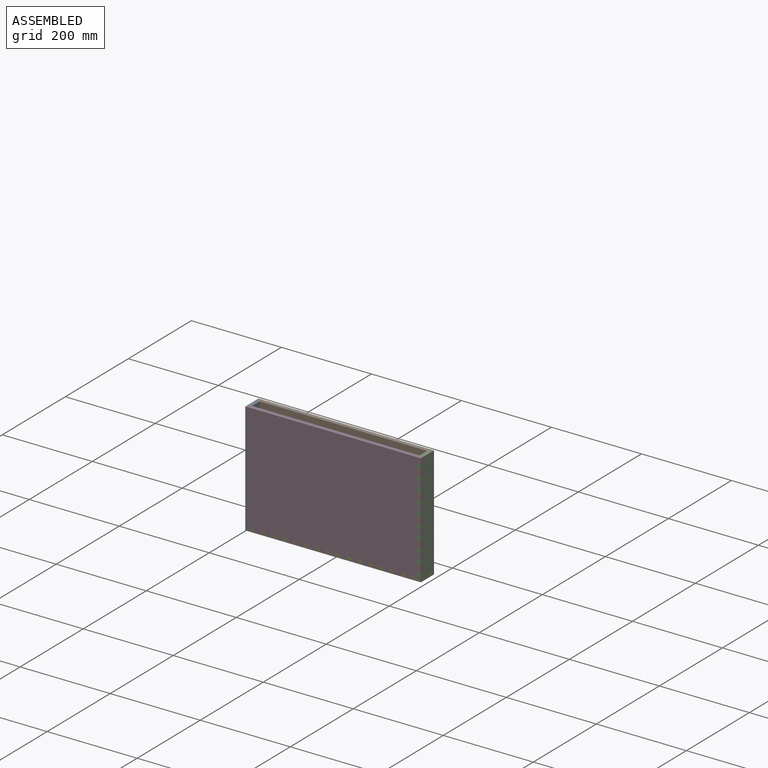
[diagram: assembled view]
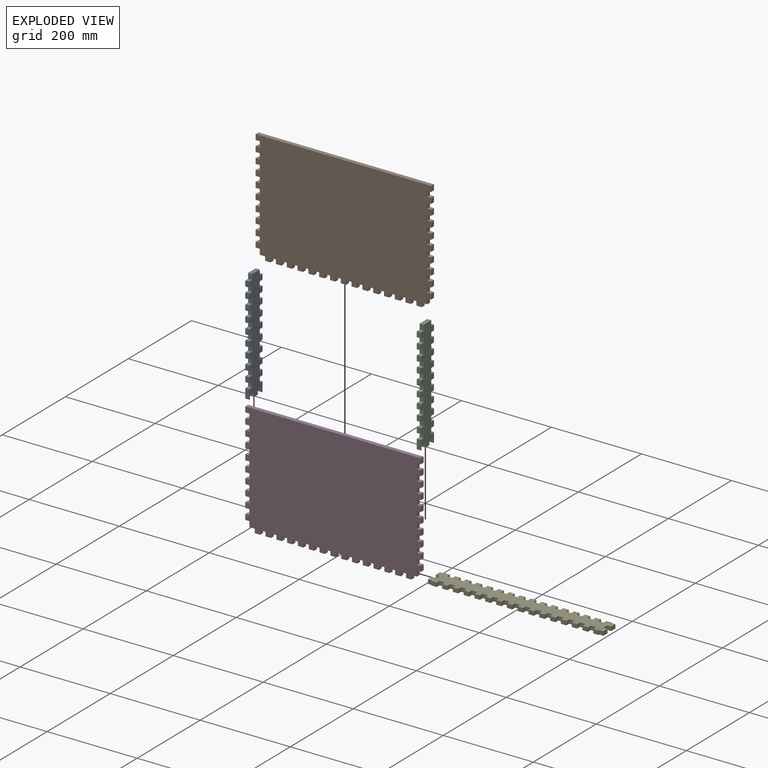
[diagram: exploded view]
GUIDED TOUR — MATED ASSEMBLY (Onshape document cdd70182d7610d9de35f9516, AutoMate assembly cdd70182d7610d9de35f9516_1303d0befae6b6fcae5bf9bf_d62f166d6a2e00d2aae2538e_default)

This assembly has 5 components, labeled P0..P4 below (a component is one placed occurrence of a part; the same part can appear more than once), held together by 4 mates. A mate is a constraint between two components; its type names the relative motion it leaves free:
  FASTENED — locks the two components together rigidly (no relative motion).
Axis/direction vectors are unit vectors and 'through' points are millimeter coordinates, both in the assembly's world frame.

MATES
  1. FASTENED "Fastened 1": P0 <-> P1, direction (0.000, 0.000, 1.000) through (-188.34, -58.39, 40.79) mm
  2. FASTENED "Fastened 4": P4 <-> P3, direction (1.000, 0.000, 0.000) through (-171.84, -91.39, -191.71) mm
  3. FASTENED "Fastened 3": P3 <-> P2, direction (0.000, 0.000, -1.000) through (192.66, -91.39, 40.79) mm
  4. FASTENED "Fastened 2": P0 <-> P3, direction (0.000, 0.000, 1.000) through (-188.34, -91.39, 40.79) mm

ASSEMBLY ORDER
  1. P2 — the base component [order verified]
  2. P0 [order verified]
  3. P4 [order verified]
  4. P1 [order verified]
  5. P3 [order verified]
Order-tag legend:
  [order verified] — this step's position reverses a verified removal order: the component was checked to insert without passing through the ones already placed.

Of the 5 components, 5 carry the full construction recipe — the FeatureScript program that regenerates the part's solid from scratch; the rest are supplied as boundary geometry only.
Each toured component is shown spotlighted twice — in the assembled view, then in the exploded view, where a leader line traces a displaced component back to its assembled socket (saturated green if recipe-attached, orange if geometry-only; every other component desaturated gray) — followed by its recipe or geometry summary and the mates that hold it.
NOTE — this tour is split across 2 documents so each fits a 32k-token context. This is document 1: the component sections continue in the remaining 1 document, each repeating the header above.
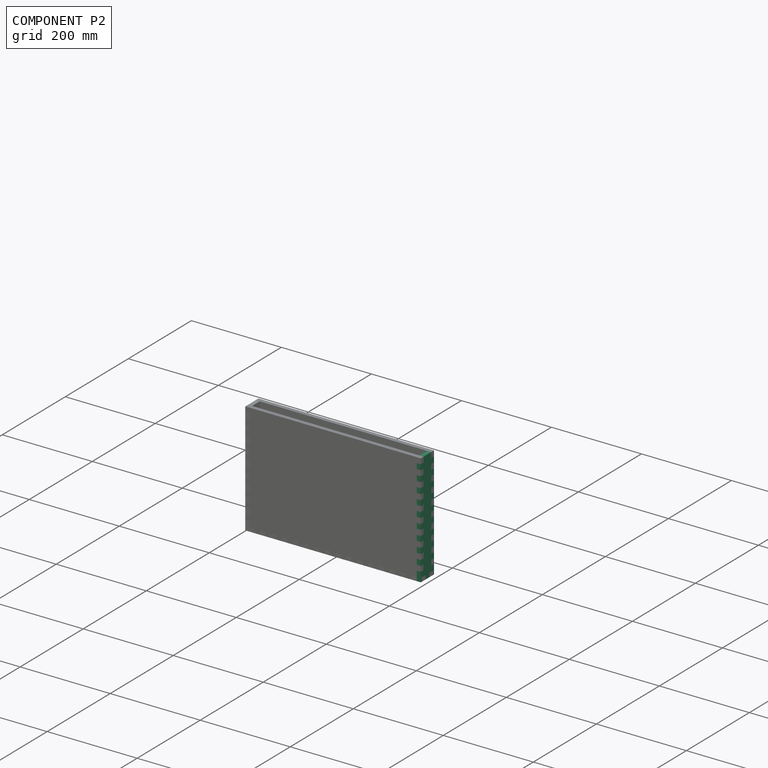
[diagram: component P2 — assembled]
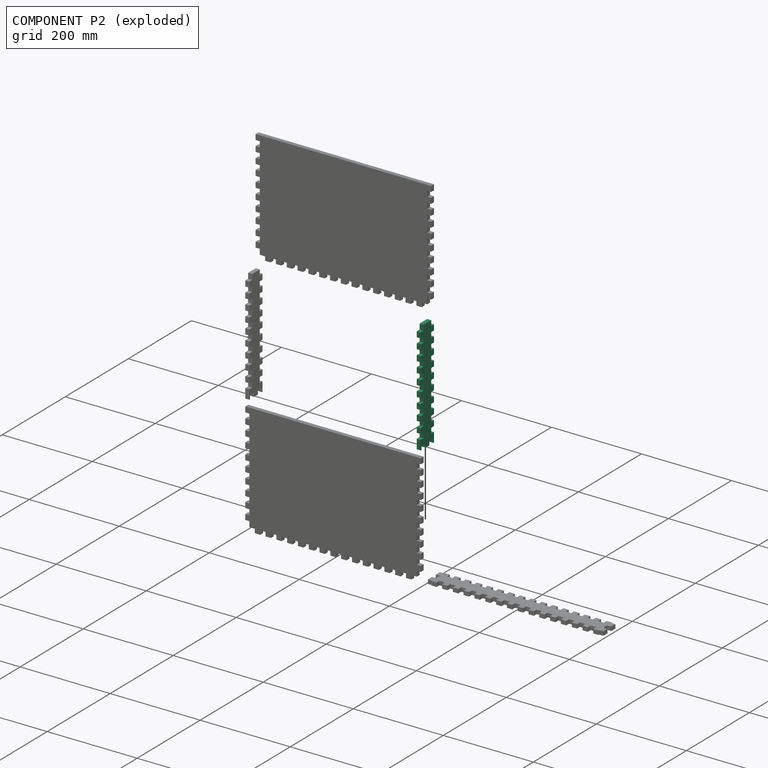
[diagram: component P2 — exploded]
COMPONENT P2 — same part as P0 (CADFS 00373085); its construction recipe is shown at P0.
Held by: FASTENED mate "Fastened 3" to P3.
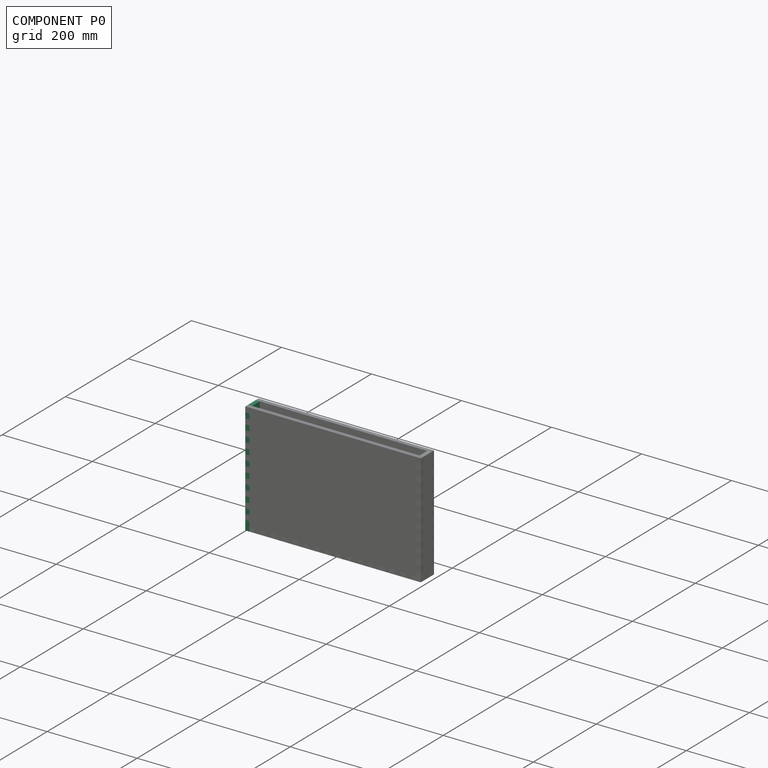
[diagram: component P0 — assembled]
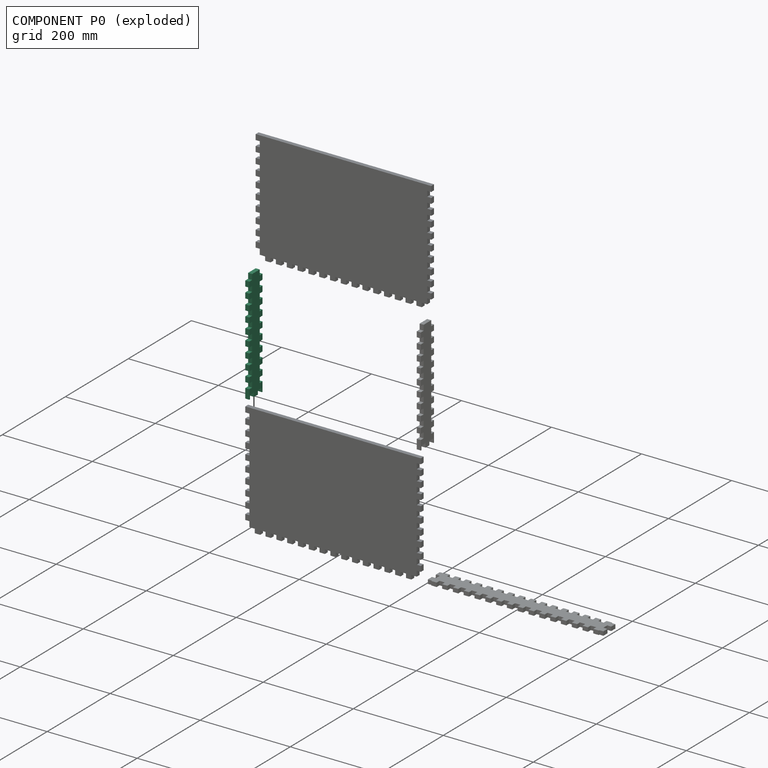
[diagram: component P0 — exploded]
COMPONENT P0 — recipe-attached (CADFS 00373085, mesh-verified: the recipe's output STEP matches this component's geometry to below the mesh-comparison resolution (tessellation chordal tolerance ~0.379 mm)).
Held by: FASTENED mate "Fastened 1" to P1; FASTENED mate "Fastened 2" to P3.
Construction recipe (FeatureScript — the CAD program that rebuilds this solid; sketch coordinates are in the units given by the * unit suffixes, e.g. mm):

FeatureScript 1511;
import(path : "onshape/std/geometry.fs", version : "1511.0");
import(path : "onshape/std/common.fs", version : "1511.0");
const mm = millimeter;
const VERTEX = EntityType.VERTEX;
const EDGE = EntityType.EDGE;
const FACE = EntityType.FACE;
const BODY = EntityType.BODY;
function v(x, y){return vector(x, y);}
function OD(order){return orderDisambiguation(order);}
function OSD(set){return originalSetDisambiguation(set);}
function TD(topology){return topologyDisambiguation(topology);}
function TDD(query){return trueDependencyDisambiguation(query);}
function sQuery(a, b, c) {return sketchEntityQuery(a, b, c);}

annotation { "Feature Type Name" : "Feature", "Feature Type Description" : "" }
export const myFeature = defineFeature(function(context is Context, id is Id, definition is map)
    precondition{}
    {
        {
            var Q0;
            Q0=qCreatedBy(makeId("Right.planeOp"),FACE);
            var sketch = newSketch(context, id + "F0", { "sketchPlane" : qUnion([Q0])});
            skLineSegment(sketch, "E0.bottom", {"start": v(-12, 120) * mm, "end": v(12, 120) * mm});
            skLineSegment(sketch, "E0.top", {"start": v(-12, -120) * mm, "end": v(12, -120) * mm});
            skLineSegment(sketch, "E0.left", {"start": v(-12, 120) * mm, "end": v(-12, -120) * mm});
            skLineSegment(sketch, "E0.right", {"start": v(12, 120) * mm, "end": v(12, -120) * mm});
            skPoint(sketch, "E0.middle", {"position": v(0, 0) * mm});
            skSolve(sketch);
        }
        {
            var Q0;
            Q0=makeQuery(id+"F0.imprint","IMPRINT",FACE,{"disambiguationData":[TD([[makeQuery(id+"F0.imprint","IMPRINT",EDGE,{"derivedFrom":sQuery(id+"F0.wireOp",EDGE,"E0.bottom")}),-1.0]])]});
            extrude(context, id + "F1", {"entities" : qUnion([Q0]), "depth" : 9 * mm});
        }
        {
            var Q0;
            Q0=makeQuery(id+"F1.opExtrude","CAP_FACE",FACE,{"disambiguationData":[OSD([sQuery(id+"F0.wireOp",EDGE,"E0.bottom"),sQuery(id+"F0.wireOp",EDGE,"E0.top"),sQuery(id+"F0.wireOp",EDGE,"E0.left"),sQuery(id+"F0.wireOp",EDGE,"E0.right")])],"isStart":false});
            var sketch = newSketch(context, id + "F2", { "sketchPlane" : qUnion([Q0])});
            skLineSegment(sketch, "E1.bottom", {"start": v(-12, -120) * mm, "end": v(-21, -120) * mm});
            skLineSegment(sketch, "E1.top", {"start": v(-12, -108) * mm, "end": v(-21, -108) * mm});
            skLineSegment(sketch, "E1.left", {"start": v(-12, -120) * mm, "end": v(-12, -108) * mm});
            skLineSegment(sketch, "E1.right", {"start": v(-21, -120) * mm, "end": v(-21, -108) * mm});
            skLineSegment(sketch, "E2.0.1.0", {"start": v(-12, -84) * mm, "end": v(-21, -84) * mm});
            skLineSegment(sketch, "E2.0.1.1", {"start": v(-12, -96) * mm, "end": v(-12, -84) * mm});
            skLineSegment(sketch, "E2.0.1.2", {"start": v(-12, -96) * mm, "end": v(-21, -96) * mm});
            skLineSegment(sketch, "E2.0.1.3", {"start": v(-21, -96) * mm, "end": v(-21, -84) * mm});
            skLineSegment(sketch, "E2.0.2.0", {"start": v(-12, -60) * mm, "end": v(-21, -60) * mm});
            skLineSegment(sketch, "E2.0.2.1", {"start": v(-12, -72) * mm, "end": v(-12, -60) * mm});
            skLineSegment(sketch, "E2.0.2.2", {"start": v(-12, -72) * mm, "end": v(-21, -72) * mm});
            skLineSegment(sketch, "E2.0.2.3", {"start": v(-21, -72) * mm, "end": v(-21, -60) * mm});
            skLineSegment(sketch, "E2.0.3.0", {"start": v(-12, -36) * mm, "end": v(-21, -36) * mm});
            skLineSegment(sketch, "E2.0.3.1", {"start": v(-12, -48) * mm, "end": v(-12, -36) * mm});
            skLineSegment(sketch, "E2.0.3.2", {"start": v(-12, -48) * mm, "end": v(-21, -48) * mm});
            skLineSegment(sketch, "E2.0.3.3", {"start": v(-21, -48) * mm, "end": v(-21, -36) * mm});
            skLineSegment(sketch, "E2.0.4.0", {"start": v(-12, -12) * mm, "end": v(-21, -12) * mm});
            skLineSegment(sketch, "E2.0.4.1", {"start": v(-12, -24) * mm, "end": v(-12, -12) * mm});
            skLineSegment(sketch, "E2.0.4.2", {"start": v(-12, -24) * mm, "end": v(-21, -24) * mm});
            skLineSegment(sketch, "E2.0.4.3", {"start": v(-21, -24) * mm, "end": v(-21, -12) * mm});
            skLineSegment(sketch, "E2.0.5.0", {"start": v(-12, 12) * mm, "end": v(-21, 12) * mm});
            skLineSegment(sketch, "E2.0.5.1", {"start": v(-12, 0) * mm, "end": v(-12, 12) * mm});
            skLineSegment(sketch, "E2.0.5.2", {"start": v(-12, 0) * mm, "end": v(-21, 0) * mm});
            skLineSegment(sketch, "E2.0.5.3", {"start": v(-21, 0) * mm, "end": v(-21, 12) * mm});
            skLineSegment(sketch, "E2.0.6.0", {"start": v(-12, 36) * mm, "end": v(-21, 36) * mm});
            skLineSegment(sketch, "E2.0.6.1", {"start": v(-12, 24) * mm, "end": v(-12, 36) * mm});
            skLineSegment(sketch, "E2.0.6.2", {"start": v(-12, 24) * mm, "end": v(-21, 24) * mm});
            skLineSegment(sketch, "E2.0.6.3", {"start": v(-21, 24) * mm, "end": v(-21, 36) * mm});
            skLineSegment(sketch, "E2.0.7.0", {"start": v(-12, 60) * mm, "end": v(-21, 60) * mm});
            skLineSegment(sketch, "E2.0.7.1", {"start": v(-12, 48) * mm, "end": v(-12, 60) * mm});
            skLineSegment(sketch, "E2.0.7.2", {"start": v(-12, 48) * mm, "end": v(-21, 48) * mm});
            skLineSegment(sketch, "E2.0.7.3", {"start": v(-21, 48) * mm, "end": v(-21, 60) * mm});
            skLineSegment(sketch, "E2.0.8.0", {"start": v(-12, 84) * mm, "end": v(-21, 84) * mm});
            skLineSegment(sketch, "E2.0.8.1", {"start": v(-12, 72) * mm, "end": v(-12, 84) * mm});
            skLineSegment(sketch, "E2.0.8.2", {"start": v(-12, 72) * mm, "end": v(-21, 72) * mm});
            skLineSegment(sketch, "E2.0.8.3", {"start": v(-21, 72) * mm, "end": v(-21, 84) * mm});
            skLineSegment(sketch, "E2.0.9.0", {"start": v(-12, 108) * mm, "end": v(-21, 108) * mm});
            skLineSegment(sketch, "E2.0.9.1", {"start": v(-12, 96) * mm, "end": v(-12, 108) * mm});
            skLineSegment(sketch, "E2.0.9.2", {"start": v(-12, 96) * mm, "end": v(-21, 96) * mm});
            skLineSegment(sketch, "E2.0.9.3", {"start": v(-21, 96) * mm, "end": v(-21, 108) * mm});
            skLineSegment(sketch, "E2.direction1", {"start": v(-21, -108) * mm, "end": v(-11, -108) * mm, "construction": true});
            skLineSegment(sketch, "E2.direction2", {"start": v(-21, -108) * mm, "end": v(-21, -84) * mm, "construction": true});
            skLineSegment(sketch, "E3", {"start": v(0, 120) * mm, "end": v(0, 0) * mm});
            skLineSegment(sketch, "E4.MirrorCS", {"start": v(21, -96) * mm, "end": v(21, -84) * mm});
            skLineSegment(sketch, "E5.MirrorCS", {"start": v(21, 24) * mm, "end": v(21, 36) * mm});
            skLineSegment(sketch, "E6.MirrorCS", {"start": v(21, 96) * mm, "end": v(21, 108) * mm});
            skLineSegment(sketch, "E7.MirrorCS", {"start": v(21, -24) * mm, "end": v(21, -12) * mm});
            skLineSegment(sketch, "E8.MirrorCS", {"start": v(21, 72) * mm, "end": v(21, 84) * mm});
            skLineSegment(sketch, "E9.MirrorCS", {"start": v(12, 24) * mm, "end": v(21, 24) * mm});
            skLineSegment(sketch, "E10.MirrorCS", {"start": v(12, -24) * mm, "end": v(21, -24) * mm});
            skLineSegment(sketch, "E11.MirrorCS", {"start": v(12, 72) * mm, "end": v(21, 72) * mm});
            skLineSegment(sketch, "E12.MirrorCS", {"start": v(12, 0) * mm, "end": v(21, 0) * mm});
            skLineSegment(sketch, "E13.MirrorCS", {"start": v(21, 48) * mm, "end": v(21, 60) * mm});
            skLineSegment(sketch, "E14.MirrorCS", {"start": v(12, 96) * mm, "end": v(21, 96) * mm});
            skLineSegment(sketch, "E15.MirrorCS", {"start": v(12, -36) * mm, "end": v(21, -36) * mm});
            skLineSegment(sketch, "E16.MirrorCS", {"start": v(12, 24) * mm, "end": v(12, 36) * mm});
            skLineSegment(sketch, "E17.MirrorCS", {"start": v(21, -108) * mm, "end": v(21, -84) * mm, "construction": true});
            skLineSegment(sketch, "E18.MirrorCS", {"start": v(21, -72) * mm, "end": v(21, -60) * mm});
            skLineSegment(sketch, "E19.MirrorCS", {"start": v(12, -72) * mm, "end": v(21, -72) * mm});
            skLineSegment(sketch, "E20.MirrorCS", {"start": v(12, -72) * mm, "end": v(12, -60) * mm});
            skLineSegment(sketch, "E21.MirrorCS", {"start": v(12, -60) * mm, "end": v(21, -60) * mm});
            skLineSegment(sketch, "E22.MirrorCS", {"start": v(12, -96) * mm, "end": v(21, -96) * mm});
            skLineSegment(sketch, "E23.MirrorCS", {"start": v(12, -96) * mm, "end": v(12, -84) * mm});
            skLineSegment(sketch, "E24.MirrorCS", {"start": v(12, -84) * mm, "end": v(21, -84) * mm});
            skLineSegment(sketch, "E25.MirrorCS", {"start": v(21, -120) * mm, "end": v(21, -108) * mm});
            skLineSegment(sketch, "E26.MirrorCS", {"start": v(12, -120) * mm, "end": v(12, -108) * mm});
            skLineSegment(sketch, "E27.MirrorCS", {"start": v(12, -108) * mm, "end": v(21, -108) * mm});
            skLineSegment(sketch, "E28.MirrorCS", {"start": v(12, -120) * mm, "end": v(21, -120) * mm});
            skLineSegment(sketch, "E29.MirrorCS", {"start": v(21, -48) * mm, "end": v(21, -36) * mm});
            skLineSegment(sketch, "E30.MirrorCS", {"start": v(12, -48) * mm, "end": v(21, -48) * mm});
            skLineSegment(sketch, "E31.MirrorCS", {"start": v(12, -48) * mm, "end": v(12, -36) * mm});
            skLineSegment(sketch, "E32.MirrorCS", {"start": v(12, -24) * mm, "end": v(12, -12) * mm});
            skLineSegment(sketch, "E33.MirrorCS", {"start": v(12, 72) * mm, "end": v(12, 84) * mm});
            skLineSegment(sketch, "E34.MirrorCS", {"start": v(12, 0) * mm, "end": v(12, 12) * mm});
            skLineSegment(sketch, "E35.MirrorCS", {"start": v(12, 48) * mm, "end": v(21, 48) * mm});
            skLineSegment(sketch, "E36.MirrorCS", {"start": v(12, 96) * mm, "end": v(12, 108) * mm});
            skLineSegment(sketch, "E37.MirrorCS", {"start": v(12, 36) * mm, "end": v(21, 36) * mm});
            skLineSegment(sketch, "E38.MirrorCS", {"start": v(12, 60) * mm, "end": v(21, 60) * mm});
            skLineSegment(sketch, "E39.MirrorCS", {"start": v(12, -12) * mm, "end": v(21, -12) * mm});
            skLineSegment(sketch, "E40.MirrorCS", {"start": v(12, 108) * mm, "end": v(21, 108) * mm});
            skLineSegment(sketch, "E41.MirrorCS", {"start": v(12, 48) * mm, "end": v(12, 60) * mm});
            skLineSegment(sketch, "E42.MirrorCS", {"start": v(12, 12) * mm, "end": v(21, 12) * mm});
            skLineSegment(sketch, "E43.MirrorCS", {"start": v(12, 84) * mm, "end": v(21, 84) * mm});
            skLineSegment(sketch, "E44.MirrorCS", {"start": v(21, 0) * mm, "end": v(21, 12) * mm});
            skSolve(sketch);
        }
        {
            var Q0;
            Q0 = qSketchRegion(id + "F2", true);
            var Q1;
            Q1=makeQuery(id+"F1.opExtrude","CAP_FACE",FACE,{"disambiguationData":[OSD([sQuery(id+"F0.wireOp",EDGE,"E0.bottom"),sQuery(id+"F0.wireOp",EDGE,"E0.top"),sQuery(id+"F0.wireOp",EDGE,"E0.left"),sQuery(id+"F0.wireOp",EDGE,"E0.right")])],"isStart":true});
            extrude(context, id + "F3", {"entities" : qUnion([Q0]), "operationType" : NewBodyOperationType.ADD, "endBound" : BoundingType.UP_TO_SURFACE, "oppositeDirection" : true, "endBoundEntityFace" : qUnion([Q1]), "depth" : 25 * mm});
        }
        {
            var Q0;
            Q0=makeQuery(id+"F3.boolean.opBoolean","MERGE",FACE,{"derivedFrom":[makeQuery(id+"F1.opExtrude","CAP_FACE",FACE,{"disambiguationData":[OSD([sQuery(id+"F0.wireOp",EDGE,"E0.bottom"),sQuery(id+"F0.wireOp",EDGE,"E0.top"),sQuery(id+"F0.wireOp",EDGE,"E0.left"),sQuery(id+"F0.wireOp",EDGE,"E0.right")])],"isStart":false}),makeQuery(id+"F3.opExtrude","CAP_FACE",FACE,{"disambiguationData":[OSD([sQuery(id+"F2.wireOp",EDGE,"E1.bottom"),sQuery(id+"F2.wireOp",EDGE,"E1.top"),sQuery(id+"F2.wireOp",EDGE,"E1.left"),sQuery(id+"F2.wireOp",EDGE,"E1.right")])],"isStart":true}),makeQuery(id+"F3.opExtrude","CAP_FACE",FACE,{"disambiguationData":[OSD([sQuery(id+"F2.wireOp",EDGE,"E2.0.1.0"),sQuery(id+"F2.wireOp",EDGE,"E2.0.1.1"),sQuery(id+"F2.wireOp",EDGE,"E2.0.1.2"),sQuery(id+"F2.wireOp",EDGE,"E2.0.1.3")])],"isStart":true}),makeQuery(id+"F3.opExtrude","CAP_FACE",FACE,{"disambiguationData":[OSD([sQuery(id+"F2.wireOp",EDGE,"E2.0.2.0"),sQuery(id+"F2.wireOp",EDGE,"E2.0.2.1"),sQuery(id+"F2.wireOp",EDGE,"E2.0.2.2"),sQuery(id+"F2.wireOp",EDGE,"E2.0.2.3")])],"isStart":true}),makeQuery(id+"F3.opExtrude","CAP_FACE",FACE,{"disambiguationData":[OSD([sQuery(id+"F2.wireOp",EDGE,"E2.0.3.0"),sQuery(id+"F2.wireOp",EDGE,"E2.0.3.1"),sQuery(id+"F2.wireOp",EDGE,"E2.0.3.2"),sQuery(id+"F2.wireOp",EDGE,"E2.0.3.3")])],"isStart":true}),makeQuery(id+"F3.opExtrude","CAP_FACE",FACE,{"disambiguationData":[OSD([sQuery(id+"F2.wireOp",EDGE,"E2.0.4.0"),sQuery(id+"F2.wireOp",EDGE,"E2.0.4.1"),sQuery(id+"F2.wireOp",EDGE,"E2.0.4.2"),sQuery(id+"F2.wireOp",EDGE,"E2.0.4.3")])],"isStart":true}),makeQuery(id+"F3.opExtrude","CAP_FACE",FACE,{"disambiguationData":[OSD([sQuery(id+"F2.wireOp",EDGE,"E2.0.5.0"),sQuery(id+"F2.wireOp",EDGE,"E2.0.5.1"),sQuery(id+"F2.wireOp",EDGE,"E2.0.5.2"),sQuery(id+"F2.wireOp",EDGE,"E2.0.5.3")])],"isStart":true}),makeQuery(id+"F3.opExtrude","CAP_FACE",FACE,{"disambiguationData":[OSD([sQuery(id+"F2.wireOp",EDGE,"E2.0.6.0"),sQuery(id+"F2.wireOp",EDGE,"E2.0.6.1"),sQuery(id+"F2.wireOp",EDGE,"E2.0.6.2"),sQuery(id+"F2.wireOp",EDGE,"E2.0.6.3")])],"isStart":true}),makeQuery(id+"F3.opExtrude","CAP_FACE",FACE,{"disambiguationData":[OSD([sQuery(id+"F2.wireOp",EDGE,"E2.0.7.0"),sQuery(id+"F2.wireOp",EDGE,"E2.0.7.1"),sQuery(id+"F2.wireOp",EDGE,"E2.0.7.2"),sQuery(id+"F2.wireOp",EDGE,"E2.0.7.3")])],"isStart":true}),makeQuery(id+"F3.opExtrude","CAP_FACE",FACE,{"disambiguationData":[OSD([sQuery(id+"F2.wireOp",EDGE,"E2.0.8.0"),sQuery(id+"F2.wireOp",EDGE,"E2.0.8.1"),sQuery(id+"F2.wireOp",EDGE,"E2.0.8.2"),sQuery(id+"F2.wireOp",EDGE,"E2.0.8.3")])],"isStart":true}),makeQuery(id+"F3.opExtrude","CAP_FACE",FACE,{"disambiguationData":[OSD([sQuery(id+"F2.wireOp",EDGE,"E2.0.9.0"),sQuery(id+"F2.wireOp",EDGE,"E2.0.9.1"),sQuery(id+"F2.wireOp",EDGE,"E2.0.9.2"),sQuery(id+"F2.wireOp",EDGE,"E2.0.9.3")])],"isStart":true}),makeQuery(id+"F3.opExtrude","CAP_FACE",FACE,{"disambiguationData":[OSD([sQuery(id+"F2.wireOp",EDGE,"E4.MirrorCS"),sQuery(id+"F2.wireOp",EDGE,"E22.MirrorCS"),sQuery(id+"F2.wireOp",EDGE,"E23.MirrorCS"),sQuery(id+"F2.wireOp",EDGE,"E24.MirrorCS")])],"isStart":true}),makeQuery(id+"F3.opExtrude","CAP_FACE",FACE,{"disambiguationData":[OSD([sQuery(id+"F2.wireOp",EDGE,"E5.MirrorCS"),sQuery(id+"F2.wireOp",EDGE,"E9.MirrorCS"),sQuery(id+"F2.wireOp",EDGE,"E16.MirrorCS"),sQuery(id+"F2.wireOp",EDGE,"E37.MirrorCS")])],"isStart":true}),makeQuery(id+"F3.opExtrude","CAP_FACE",FACE,{"disambiguationData":[OSD([sQuery(id+"F2.wireOp",EDGE,"E6.MirrorCS"),sQuery(id+"F2.wireOp",EDGE,"E14.MirrorCS"),sQuery(id+"F2.wireOp",EDGE,"E36.MirrorCS"),sQuery(id+"F2.wireOp",EDGE,"E40.MirrorCS")])],"isStart":true}),makeQuery(id+"F3.opExtrude","CAP_FACE",FACE,{"disambiguationData":[OSD([sQuery(id+"F2.wireOp",EDGE,"E7.MirrorCS"),sQuery(id+"F2.wireOp",EDGE,"E10.MirrorCS"),sQuery(id+"F2.wireOp",EDGE,"E32.MirrorCS"),sQuery(id+"F2.wireOp",EDGE,"E39.MirrorCS")])],"isStart":true}),makeQuery(id+"F3.opExtrude","CAP_FACE",FACE,{"disambiguationData":[OSD([sQuery(id+"F2.wireOp",EDGE,"E8.MirrorCS"),sQuery(id+"F2.wireOp",EDGE,"E11.MirrorCS"),sQuery(id+"F2.wireOp",EDGE,"E33.MirrorCS"),sQuery(id+"F2.wireOp",EDGE,"E43.MirrorCS")])],"isStart":true}),makeQuery(id+"F3.opExtrude","CAP_FACE",FACE,{"disambiguationData":[OSD([sQuery(id+"F2.wireOp",EDGE,"E12.MirrorCS"),sQuery(id+"F2.wireOp",EDGE,"E34.MirrorCS"),sQuery(id+"F2.wireOp",EDGE,"E42.MirrorCS"),sQuery(id+"F2.wireOp",EDGE,"E44.MirrorCS")])],"isStart":true}),makeQuery(id+"F3.opExtrude","CAP_FACE",FACE,{"disambiguationData":[OSD([sQuery(id+"F2.wireOp",EDGE,"E13.MirrorCS"),sQuery(id+"F2.wireOp",EDGE,"E35.MirrorCS"),sQuery(id+"F2.wireOp",EDGE,"E38.MirrorCS"),sQuery(id+"F2.wireOp",EDGE,"E41.MirrorCS")])],"isStart":true}),makeQuery(id+"F3.opExtrude","CAP_FACE",FACE,{"disambiguationData":[OSD([sQuery(id+"F2.wireOp",EDGE,"E15.MirrorCS"),sQuery(id+"F2.wireOp",EDGE,"E29.MirrorCS"),sQuery(id+"F2.wireOp",EDGE,"E30.MirrorCS"),sQuery(id+"F2.wireOp",EDGE,"E31.MirrorCS")])],"isStart":true}),makeQuery(id+"F3.opExtrude","CAP_FACE",FACE,{"disambiguationData":[OSD([sQuery(id+"F2.wireOp",EDGE,"E18.MirrorCS"),sQuery(id+"F2.wireOp",EDGE,"E19.MirrorCS"),sQuery(id+"F2.wireOp",EDGE,"E20.MirrorCS"),sQuery(id+"F2.wireOp",EDGE,"E21.MirrorCS")])],"isStart":true}),makeQuery(id+"F3.opExtrude","CAP_FACE",FACE,{"disambiguationData":[OSD([sQuery(id+"F2.wireOp",EDGE,"E25.MirrorCS"),sQuery(id+"F2.wireOp",EDGE,"E26.MirrorCS"),sQuery(id+"F2.wireOp",EDGE,"E27.MirrorCS"),sQuery(id+"F2.wireOp",EDGE,"E28.MirrorCS")])],"isStart":true})]});
            var sketch = newSketch(context, id + "F4", { "sketchPlane" : qUnion([Q0])});
            skLineSegment(sketch, "E45", {"start": v(0, -120) * mm, "end": v(0, -124.5) * mm, "construction": true});
            skLineSegment(sketch, "E46.bottom", {"start": v(6, -120) * mm, "end": v(-6, -120) * mm});
            skLineSegment(sketch, "E46.top", {"start": v(6, -129) * mm, "end": v(-6, -129) * mm});
            skLineSegment(sketch, "E46.left", {"start": v(6, -120) * mm, "end": v(6, -129) * mm});
            skLineSegment(sketch, "E46.right", {"start": v(-6, -120) * mm, "end": v(-6, -129) * mm});
            skPoint(sketch, "E46.middle", {"position": v(0, -124.5) * mm});
            skLineSegment(sketch, "E47.1.0.1", {"start": v(21, -120) * mm, "end": v(19, -120) * mm});
            skLineSegment(sketch, "E47.1.0.2", {"start": v(19, -120) * mm, "end": v(19, -129) * mm});
            skLineSegment(sketch, "E47.1.0.3", {"start": v(21, -129) * mm, "end": v(19, -129) * mm});
            skLineSegment(sketch, "E47.direction1", {"start": v(6, -129) * mm, "end": v(21, -129) * mm, "construction": true});
            skLineSegment(sketch, "E48.MirrorCS", {"start": v(-19, -120) * mm, "end": v(-19, -129) * mm});
            skPoint(sketch, "E49.MirrorCS.start.orphan", {"position": v(19, -138) * mm});
            skPoint(sketch, "E50.MirrorCS.start.orphan", {"position": v(31, -138) * mm});
            skLineSegment(sketch, "E51", {"start": v(-21, -129) * mm, "end": v(-19, -129) * mm});
            skLineSegment(sketch, "E52", {"start": v(-21, -120) * mm, "end": v(-21, -129) * mm});
            skPoint(sketch, "E53.MirrorCS.start.orphan", {"position": v(-31, -120) * mm});
            skPoint(sketch, "E54.orphan", {"position": v(-31, -129) * mm});
            skLineSegment(sketch, "E55", {"start": v(21, -120) * mm, "end": v(21, -129) * mm});
            skPoint(sketch, "E56.orphan", {"position": v(31, -120) * mm});
            skPoint(sketch, "E57.orphan", {"position": v(31, -129) * mm});
            skLineSegment(sketch, "E58", {"start": v(-21, -120) * mm, "end": v(-19, -120) * mm});
            skSolve(sketch);
        }
        {
            var Q0;
            Q0 = qSketchRegion(id + "F4", true);
            var Q1;
            {var subQ0=sQuery(id+"F0.wireOp",EDGE,"E0.right");var subQ1=sQuery(id+"F0.wireOp",EDGE,"E0.left");var subQ2=sQuery(id+"F0.wireOp",EDGE,"E0.top");var subQ3=sQuery(id+"F0.wireOp",EDGE,"E0.bottom");Q1=makeQuery(id+"F3.boolean.opBoolean","MERGE",FACE,{"derivedFrom":[makeQuery(id+"F1.opExtrude","CAP_FACE",FACE,{"disambiguationData":[OSD([subQ3,subQ2,subQ1,subQ0])],"isStart":true}),makeQuery(id+"F3.opExtrude","CAP_FACE",FACE,{"disambiguationData":[OSD([subQ3,subQ2,subQ1,subQ0]),ownerDisambiguation([makeQuery(id+"F2.imprint","IMPRINT",EDGE,{"derivedFrom":sQuery(id+"F2.wireOp",EDGE,"E1.bottom")})])],"isStart":false}),makeQuery(id+"F3.opExtrude","CAP_FACE",FACE,{"disambiguationData":[OSD([subQ3,subQ2,subQ1,subQ0]),ownerDisambiguation([makeQuery(id+"F2.imprint","IMPRINT",EDGE,{"derivedFrom":sQuery(id+"F2.wireOp",EDGE,"E2.0.1.0")})])],"isStart":false}),makeQuery(id+"F3.opExtrude","CAP_FACE",FACE,{"disambiguationData":[OSD([subQ3,subQ2,subQ1,subQ0]),ownerDisambiguation([makeQuery(id+"F2.imprint","IMPRINT",EDGE,{"derivedFrom":sQuery(id+"F2.wireOp",EDGE,"E2.0.2.0")})])],"isStart":false}),makeQuery(id+"F3.opExtrude","CAP_FACE",FACE,{"disambiguationData":[OSD([subQ3,subQ2,subQ1,subQ0]),ownerDisambiguation([makeQuery(id+"F2.imprint","IMPRINT",EDGE,{"derivedFrom":sQuery(id+"F2.wireOp",EDGE,"E2.0.3.0")})])],"isStart":false}),makeQuery(id+"F3.opExtrude","CAP_FACE",FACE,{"disambiguationData":[OSD([subQ3,subQ2,subQ1,subQ0]),ownerDisambiguation([makeQuery(id+"F2.imprint","IMPRINT",EDGE,{"derivedFrom":sQuery(id+"F2.wireOp",EDGE,"E2.0.4.0")})])],"isStart":false}),makeQuery(id+"F3.opExtrude","CAP_FACE",FACE,{"disambiguationData":[OSD([subQ3,subQ2,subQ1,subQ0]),ownerDisambiguation([makeQuery(id+"F2.imprint","IMPRINT",EDGE,{"derivedFrom":sQuery(id+"F2.wireOp",EDGE,"E2.0.5.0")})])],"isStart":false}),makeQuery(id+"F3.opExtrude","CAP_FACE",FACE,{"disambiguationData":[OSD([subQ3,subQ2,subQ1,subQ0]),ownerDisambiguation([makeQuery(id+"F2.imprint","IMPRINT",EDGE,{"derivedFrom":sQuery(id+"F2.wireOp",EDGE,"E2.0.6.0")})])],"isStart":false}),makeQuery(id+"F3.opExtrude","CAP_FACE",FACE,{"disambiguationData":[OSD([subQ3,subQ2,subQ1,subQ0]),ownerDisambiguation([makeQuery(id+"F2.imprint","IMPRINT",EDGE,{"derivedFrom":sQuery(id+"F2.wireOp",EDGE,"E2.0.7.0")})])],"isStart":false}),makeQuery(id+"F3.opExtrude","CAP_FACE",FACE,{"disambiguationData":[OSD([subQ3,subQ2,subQ1,subQ0]),ownerDisambiguation([makeQuery(id+"F2.imprint","IMPRINT",EDGE,{"derivedFrom":sQuery(id+"F2.wireOp",EDGE,"E2.0.8.0")})])],"isStart":false}),makeQuery(id+"F3.opExtrude","CAP_FACE",FACE,{"disambiguationData":[OSD([subQ3,subQ2,subQ1,subQ0]),ownerDisambiguation([makeQuery(id+"F2.imprint","IMPRINT",EDGE,{"derivedFrom":sQuery(id+"F2.wireOp",EDGE,"E2.0.9.0")})])],"isStart":false}),makeQuery(id+"F3.opExtrude","CAP_FACE",FACE,{"disambiguationData":[OSD([subQ3,subQ2,subQ1,subQ0]),ownerDisambiguation([makeQuery(id+"F2.imprint","IMPRINT",EDGE,{"derivedFrom":sQuery(id+"F2.wireOp",EDGE,"E4.MirrorCS")})])],"isStart":false}),makeQuery(id+"F3.opExtrude","CAP_FACE",FACE,{"disambiguationData":[OSD([subQ3,subQ2,subQ1,subQ0]),ownerDisambiguation([makeQuery(id+"F2.imprint","IMPRINT",EDGE,{"derivedFrom":sQuery(id+"F2.wireOp",EDGE,"E5.MirrorCS")})])],"isStart":false}),makeQuery(id+"F3.opExtrude","CAP_FACE",FACE,{"disambiguationData":[OSD([subQ3,subQ2,subQ1,subQ0]),ownerDisambiguation([makeQuery(id+"F2.imprint","IMPRINT",EDGE,{"derivedFrom":sQuery(id+"F2.wireOp",EDGE,"E6.MirrorCS")})])],"isStart":false}),makeQuery(id+"F3.opExtrude","CAP_FACE",FACE,{"disambiguationData":[OSD([subQ3,subQ2,subQ1,subQ0]),ownerDisambiguation([makeQuery(id+"F2.imprint","IMPRINT",EDGE,{"derivedFrom":sQuery(id+"F2.wireOp",EDGE,"E7.MirrorCS")})])],"isStart":false}),makeQuery(id+"F3.opExtrude","CAP_FACE",FACE,{"disambiguationData":[OSD([subQ3,subQ2,subQ1,subQ0]),ownerDisambiguation([makeQuery(id+"F2.imprint","IMPRINT",EDGE,{"derivedFrom":sQuery(id+"F2.wireOp",EDGE,"E8.MirrorCS")})])],"isStart":false}),makeQuery(id+"F3.opExtrude","CAP_FACE",FACE,{"disambiguationData":[OSD([subQ3,subQ2,subQ1,subQ0]),ownerDisambiguation([makeQuery(id+"F2.imprint","IMPRINT",EDGE,{"derivedFrom":sQuery(id+"F2.wireOp",EDGE,"E12.MirrorCS")})])],"isStart":false}),makeQuery(id+"F3.opExtrude","CAP_FACE",FACE,{"disambiguationData":[OSD([subQ3,subQ2,subQ1,subQ0]),ownerDisambiguation([makeQuery(id+"F2.imprint","IMPRINT",EDGE,{"derivedFrom":sQuery(id+"F2.wireOp",EDGE,"E13.MirrorCS")})])],"isStart":false}),makeQuery(id+"F3.opExtrude","CAP_FACE",FACE,{"disambiguationData":[OSD([subQ3,subQ2,subQ1,subQ0]),ownerDisambiguation([makeQuery(id+"F2.imprint","IMPRINT",EDGE,{"derivedFrom":sQuery(id+"F2.wireOp",EDGE,"E15.MirrorCS")})])],"isStart":false}),makeQuery(id+"F3.opExtrude","CAP_FACE",FACE,{"disambiguationData":[OSD([subQ3,subQ2,subQ1,subQ0]),ownerDisambiguation([makeQuery(id+"F2.imprint","IMPRINT",EDGE,{"derivedFrom":sQuery(id+"F2.wireOp",EDGE,"E18.MirrorCS")})])],"isStart":false}),makeQuery(id+"F3.opExtrude","CAP_FACE",FACE,{"disambiguationData":[OSD([subQ3,subQ2,subQ1,subQ0]),ownerDisambiguation([makeQuery(id+"F2.imprint","IMPRINT",EDGE,{"derivedFrom":sQuery(id+"F2.wireOp",EDGE,"E25.MirrorCS")})])],"isStart":false})]});}
            extrude(context, id + "F5", {"entities" : qUnion([Q0]), "operationType" : NewBodyOperationType.ADD, "endBound" : BoundingType.UP_TO_SURFACE, "oppositeDirection" : true, "endBoundEntityFace" : qUnion([Q1]), "depth" : 25 * mm});
        }
    });
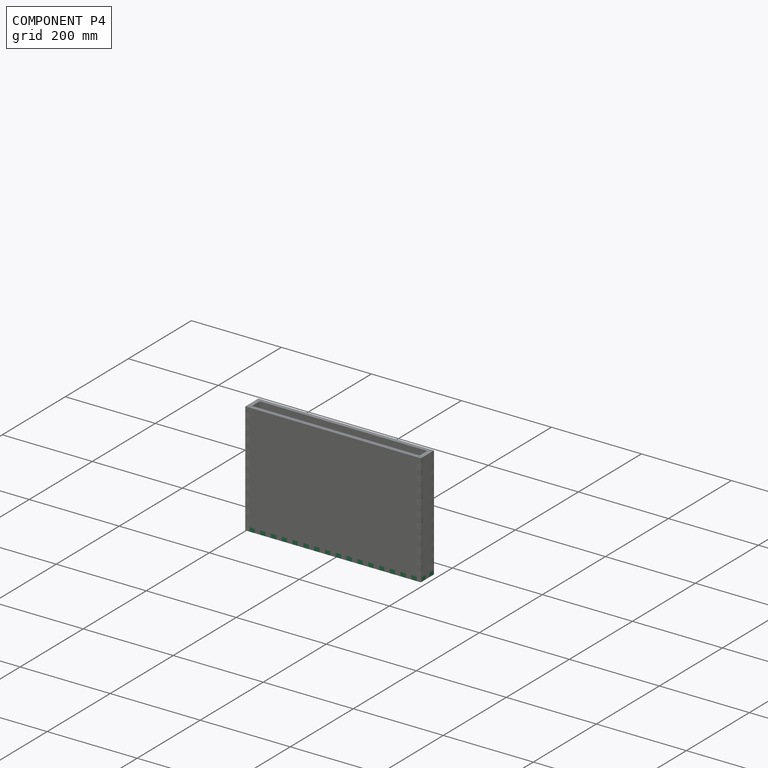
[diagram: component P4 — assembled]
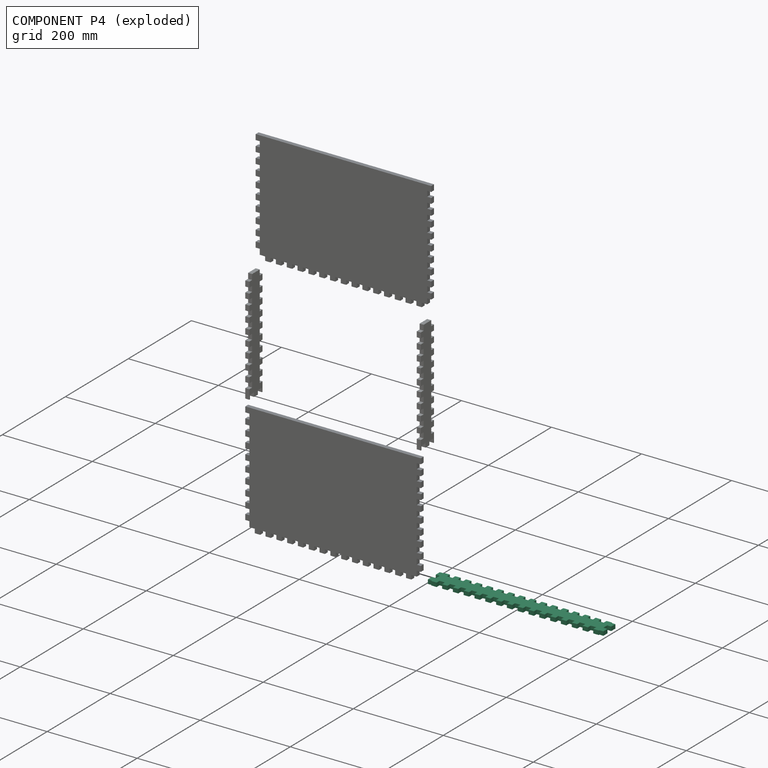
[diagram: component P4 — exploded]
COMPONENT P4 — recipe-attached (CADFS 00373086, mesh-verified: the recipe's output STEP matches this component's geometry to below the mesh-comparison resolution (tessellation chordal tolerance ~0.589 mm)).
Held by: FASTENED mate "Fastened 4" to P3.
Construction recipe (FeatureScript — the CAD program that rebuilds this solid; sketch coordinates are in the units given by the * unit suffixes, e.g. mm):

FeatureScript 1511;
import(path : "onshape/std/geometry.fs", version : "1511.0");
import(path : "onshape/std/common.fs", version : "1511.0");
const mm = millimeter;
const VERTEX = EntityType.VERTEX;
const EDGE = EntityType.EDGE;
const FACE = EntityType.FACE;
const BODY = EntityType.BODY;
function v(x, y){return vector(x, y);}
function OD(order){return orderDisambiguation(order);}
function OSD(set){return originalSetDisambiguation(set);}
function TD(topology){return topologyDisambiguation(topology);}
function TDD(query){return trueDependencyDisambiguation(query);}
function sQuery(a, b, c) {return sketchEntityQuery(a, b, c);}

annotation { "Feature Type Name" : "Feature", "Feature Type Description" : "" }
export const myFeature = defineFeature(function(context is Context, id is Id, definition is map)
    precondition{}
    {
        {
            var Q0;
            Q0=qCreatedBy(makeId("Top.planeOp"),FACE);
            var sketch = newSketch(context, id + "F0", { "sketchPlane" : qUnion([Q0])});
            skLineSegment(sketch, "E0.bottom", {"start": v(-198, 12) * mm, "end": v(198, 12) * mm});
            skLineSegment(sketch, "E0.top", {"start": v(-198, -12) * mm, "end": v(198, -12) * mm});
            skLineSegment(sketch, "E0.left", {"start": v(-198, 12) * mm, "end": v(-198, -12) * mm});
            skLineSegment(sketch, "E0.right", {"start": v(198, 12) * mm, "end": v(198, -12) * mm});
            skPoint(sketch, "E0.middle", {"position": v(0, 0) * mm});
            skSolve(sketch);
        }
        {
            var Q0;
            Q0 = qSketchRegion(id + "F0", true);
            extrude(context, id + "F1", {"entities" : qUnion([Q0]), "depth" : 9 * mm});
        }
        {
            var Q0;
            Q0=makeQuery(id+"F1.opExtrude","CAP_FACE",FACE,{"disambiguationData":[OSD([sQuery(id+"F0.wireOp",EDGE,"E0.bottom"),sQuery(id+"F0.wireOp",EDGE,"E0.top"),sQuery(id+"F0.wireOp",EDGE,"E0.left"),sQuery(id+"F0.wireOp",EDGE,"E0.right")])],"isStart":false});
            var sketch = newSketch(context, id + "F2", { "sketchPlane" : qUnion([Q0])});
            skLineSegment(sketch, "E1", {"start": v(0, 0) * mm, "end": v(0, -12) * mm, "construction": true});
            skLineSegment(sketch, "E2", {"start": v(0, -12) * mm, "end": v(6, -12) * mm, "construction": true});
            skLineSegment(sketch, "E3.bottom", {"start": v(6, -12) * mm, "end": v(18, -12) * mm});
            skLineSegment(sketch, "E3.top", {"start": v(6, -21) * mm, "end": v(18, -21) * mm});
            skLineSegment(sketch, "E3.left", {"start": v(6, -12) * mm, "end": v(6, -21) * mm});
            skLineSegment(sketch, "E3.right", {"start": v(18, -12) * mm, "end": v(18, -21) * mm});
            skLineSegment(sketch, "E4.direction1", {"start": v(6, -21) * mm, "end": v(18, -21) * mm, "construction": true});
            skLineSegment(sketch, "E5.1.0.0", {"start": v(30, -12) * mm, "end": v(30, -21) * mm});
            skLineSegment(sketch, "E5.1.0.1", {"start": v(30, -12) * mm, "end": v(42, -12) * mm});
            skLineSegment(sketch, "E5.1.0.2", {"start": v(42, -12) * mm, "end": v(42, -21) * mm});
            skLineSegment(sketch, "E5.1.0.3", {"start": v(30, -21) * mm, "end": v(42, -21) * mm});
            skLineSegment(sketch, "E5.2.0.0", {"start": v(54, -12) * mm, "end": v(54, -21) * mm});
            skLineSegment(sketch, "E5.2.0.1", {"start": v(54, -12) * mm, "end": v(66, -12) * mm});
            skLineSegment(sketch, "E5.2.0.2", {"start": v(66, -12) * mm, "end": v(66, -21) * mm});
            skLineSegment(sketch, "E5.2.0.3", {"start": v(54, -21) * mm, "end": v(66, -21) * mm});
            skLineSegment(sketch, "E5.3.0.0", {"start": v(78, -12) * mm, "end": v(78, -21) * mm});
            skLineSegment(sketch, "E5.3.0.1", {"start": v(78, -12) * mm, "end": v(90, -12) * mm});
            skLineSegment(sketch, "E5.3.0.2", {"start": v(90, -12) * mm, "end": v(90, -21) * mm});
            skLineSegment(sketch, "E5.3.0.3", {"start": v(78, -21) * mm, "end": v(90, -21) * mm});
            skLineSegment(sketch, "E5.4.0.0", {"start": v(102, -12) * mm, "end": v(102, -21) * mm});
            skLineSegment(sketch, "E5.4.0.1", {"start": v(102, -12) * mm, "end": v(114, -12) * mm});
            skLineSegment(sketch, "E5.4.0.2", {"start": v(114, -12) * mm, "end": v(114, -21) * mm});
            skLineSegment(sketch, "E5.4.0.3", {"start": v(102, -21) * mm, "end": v(114, -21) * mm});
            skLineSegment(sketch, "E5.5.0.0", {"start": v(126, -12) * mm, "end": v(126, -21) * mm});
            skLineSegment(sketch, "E5.5.0.1", {"start": v(126, -12) * mm, "end": v(138, -12) * mm});
            skLineSegment(sketch, "E5.5.0.2", {"start": v(138, -12) * mm, "end": v(138, -21) * mm});
            skLineSegment(sketch, "E5.5.0.3", {"start": v(126, -21) * mm, "end": v(138, -21) * mm});
            skLineSegment(sketch, "E5.6.0.0", {"start": v(150, -12) * mm, "end": v(150, -21) * mm});
            skLineSegment(sketch, "E5.6.0.1", {"start": v(150, -12) * mm, "end": v(162, -12) * mm});
            skLineSegment(sketch, "E5.6.0.2", {"start": v(162, -12) * mm, "end": v(162, -21) * mm});
            skLineSegment(sketch, "E5.6.0.3", {"start": v(150, -21) * mm, "end": v(162, -21) * mm});
            skLineSegment(sketch, "E5.7.0.0", {"start": v(174, -12) * mm, "end": v(174, -21) * mm});
            skLineSegment(sketch, "E5.7.0.1", {"start": v(174, -12) * mm, "end": v(186, -12) * mm});
            skLineSegment(sketch, "E5.7.0.2", {"start": v(186, -12) * mm, "end": v(186, -21) * mm});
            skLineSegment(sketch, "E5.7.0.3", {"start": v(174, -21) * mm, "end": v(186, -21) * mm});
            skLineSegment(sketch, "E5.direction1", {"start": v(6, -21) * mm, "end": v(30, -21) * mm, "construction": true});
            skLineSegment(sketch, "E6.MirrorCS", {"start": v(-6, -21) * mm, "end": v(-18, -21) * mm});
            skLineSegment(sketch, "E7.MirrorCS", {"start": v(0, -12) * mm, "end": v(-6, -12) * mm, "construction": true});
            skLineSegment(sketch, "E8.MirrorCS", {"start": v(-6, -12) * mm, "end": v(-6, -21) * mm});
            skLineSegment(sketch, "E9.MirrorCS", {"start": v(-6, -21) * mm, "end": v(-18, -21) * mm, "construction": true});
            skLineSegment(sketch, "E10.MirrorCS", {"start": v(-6, -21) * mm, "end": v(-30, -21) * mm, "construction": true});
            skLineSegment(sketch, "E11.MirrorCS", {"start": v(-66, -12) * mm, "end": v(-66, -21) * mm});
            skLineSegment(sketch, "E12.MirrorCS", {"start": v(-54, -21) * mm, "end": v(-66, -21) * mm});
            skLineSegment(sketch, "E13.MirrorCS", {"start": v(-78, -12) * mm, "end": v(-78, -21) * mm});
            skLineSegment(sketch, "E14.MirrorCS", {"start": v(-6, -12) * mm, "end": v(-18, -12) * mm});
            skLineSegment(sketch, "E15.MirrorCS", {"start": v(-126, -12) * mm, "end": v(-126, -21) * mm});
            skLineSegment(sketch, "E16.MirrorCS", {"start": v(-150, -12) * mm, "end": v(-150, -21) * mm});
            skLineSegment(sketch, "E17.MirrorCS", {"start": v(-162, -12) * mm, "end": v(-162, -21) * mm});
            skLineSegment(sketch, "E18.MirrorCS", {"start": v(-18, -12) * mm, "end": v(-18, -21) * mm});
            skLineSegment(sketch, "E19.MirrorCS", {"start": v(-30, -12) * mm, "end": v(-30, -21) * mm});
            skLineSegment(sketch, "E20.MirrorCS", {"start": v(-30, -12) * mm, "end": v(-42, -12) * mm});
            skLineSegment(sketch, "E21.MirrorCS", {"start": v(-102, -12) * mm, "end": v(-114, -12) * mm});
            skLineSegment(sketch, "E22.MirrorCS", {"start": v(-174, -12) * mm, "end": v(-186, -12) * mm});
            skLineSegment(sketch, "E23.MirrorCS", {"start": v(-42, -12) * mm, "end": v(-42, -21) * mm});
            skLineSegment(sketch, "E24.MirrorCS", {"start": v(-30, -21) * mm, "end": v(-42, -21) * mm});
            skLineSegment(sketch, "E25.MirrorCS", {"start": v(-54, -12) * mm, "end": v(-54, -21) * mm});
            skLineSegment(sketch, "E26.MirrorCS", {"start": v(-138, -12) * mm, "end": v(-138, -21) * mm});
            skLineSegment(sketch, "E27.MirrorCS", {"start": v(-54, -12) * mm, "end": v(-66, -12) * mm});
            skLineSegment(sketch, "E28.MirrorCS", {"start": v(-78, -12) * mm, "end": v(-90, -12) * mm});
            skLineSegment(sketch, "E29.MirrorCS", {"start": v(-174, -12) * mm, "end": v(-174, -21) * mm});
            skLineSegment(sketch, "E30.MirrorCS", {"start": v(-102, -21) * mm, "end": v(-114, -21) * mm});
            skLineSegment(sketch, "E31.MirrorCS", {"start": v(-174, -21) * mm, "end": v(-186, -21) * mm});
            skLineSegment(sketch, "E32.MirrorCS", {"start": v(-78, -21) * mm, "end": v(-90, -21) * mm});
            skLineSegment(sketch, "E33.MirrorCS", {"start": v(-150, -12) * mm, "end": v(-162, -12) * mm});
            skLineSegment(sketch, "E34.MirrorCS", {"start": v(-126, -21) * mm, "end": v(-138, -21) * mm});
            skLineSegment(sketch, "E35.MirrorCS", {"start": v(-150, -21) * mm, "end": v(-162, -21) * mm});
            skLineSegment(sketch, "E36.MirrorCS", {"start": v(-114, -12) * mm, "end": v(-114, -21) * mm});
            skLineSegment(sketch, "E37.MirrorCS", {"start": v(-102, -12) * mm, "end": v(-102, -21) * mm});
            skLineSegment(sketch, "E38.MirrorCS", {"start": v(-90, -12) * mm, "end": v(-90, -21) * mm});
            skLineSegment(sketch, "E39.MirrorCS", {"start": v(-126, -12) * mm, "end": v(-138, -12) * mm});
            skLineSegment(sketch, "E40.MirrorCS", {"start": v(-186, -12) * mm, "end": v(-186, -21) * mm});
            skLineSegment(sketch, "E41", {"start": v(-198, 0) * mm, "end": v(-171.64, 0) * mm, "construction": true});
            skPoint(sketch, "E41.endSnap0", {"position": v(-198, 0) * mm});
            skLineSegment(sketch, "E42.MirrorCS", {"start": v(6, 12) * mm, "end": v(6, 21) * mm});
            skLineSegment(sketch, "E43.MirrorCS", {"start": v(-6, 21) * mm, "end": v(-18, 21) * mm});
            skLineSegment(sketch, "E44.MirrorCS", {"start": v(0, 12) * mm, "end": v(6, 12) * mm, "construction": true});
            skLineSegment(sketch, "E45.MirrorCS", {"start": v(6, 21) * mm, "end": v(18, 21) * mm});
            skLineSegment(sketch, "E46.MirrorCS", {"start": v(0, 12) * mm, "end": v(-6, 12) * mm, "construction": true});
            skLineSegment(sketch, "E47.MirrorCS", {"start": v(-6, 12) * mm, "end": v(-6, 21) * mm});
            skLineSegment(sketch, "E48.MirrorCS", {"start": v(-6, 12) * mm, "end": v(-18, 12) * mm});
            skLineSegment(sketch, "E49.MirrorCS", {"start": v(30, 12) * mm, "end": v(42, 12) * mm});
            skLineSegment(sketch, "E50.MirrorCS", {"start": v(6, 12) * mm, "end": v(18, 12) * mm});
            skLineSegment(sketch, "E51.MirrorCS", {"start": v(-6, 21) * mm, "end": v(-30, 21) * mm, "construction": true});
            skLineSegment(sketch, "E52.MirrorCS", {"start": v(6, 21) * mm, "end": v(18, 21) * mm, "construction": true});
            skLineSegment(sketch, "E53.MirrorCS", {"start": v(6, 21) * mm, "end": v(30, 21) * mm, "construction": true});
            skLineSegment(sketch, "E54.MirrorCS", {"start": v(30, 12) * mm, "end": v(30, 21) * mm});
            skLineSegment(sketch, "E55.MirrorCS", {"start": v(-30, 12) * mm, "end": v(-30, 21) * mm});
            skLineSegment(sketch, "E56.MirrorCS", {"start": v(-6, 21) * mm, "end": v(-18, 21) * mm, "construction": true});
            skLineSegment(sketch, "E57.MirrorCS", {"start": v(-78, 12) * mm, "end": v(-78, 21) * mm});
            skLineSegment(sketch, "E58.MirrorCS", {"start": v(150, 12) * mm, "end": v(162, 12) * mm});
            skLineSegment(sketch, "E59.MirrorCS", {"start": v(-54, 21) * mm, "end": v(-66, 21) * mm});
            skLineSegment(sketch, "E60.MirrorCS", {"start": v(78, 12) * mm, "end": v(78, 21) * mm});
            skLineSegment(sketch, "E61.MirrorCS", {"start": v(-54, 12) * mm, "end": v(-54, 21) * mm});
            skLineSegment(sketch, "E62.MirrorCS", {"start": v(-30, 21) * mm, "end": v(-42, 21) * mm});
            skLineSegment(sketch, "E63.MirrorCS", {"start": v(102, 21) * mm, "end": v(114, 21) * mm});
            skLineSegment(sketch, "E64.MirrorCS", {"start": v(-150, 12) * mm, "end": v(-162, 12) * mm});
            skLineSegment(sketch, "E65.MirrorCS", {"start": v(-186, 12) * mm, "end": v(-186, 21) * mm});
            skLineSegment(sketch, "E66.MirrorCS", {"start": v(-174, 21) * mm, "end": v(-186, 21) * mm});
            skLineSegment(sketch, "E67.MirrorCS", {"start": v(-102, 12) * mm, "end": v(-114, 12) * mm});
            skLineSegment(sketch, "E68.MirrorCS", {"start": v(-78, 12) * mm, "end": v(-90, 12) * mm});
            skLineSegment(sketch, "E69.MirrorCS", {"start": v(-66, 12) * mm, "end": v(-66, 21) * mm});
            skLineSegment(sketch, "E70.MirrorCS", {"start": v(-54, 12) * mm, "end": v(-66, 12) * mm});
            skLineSegment(sketch, "E71.MirrorCS", {"start": v(174, 21) * mm, "end": v(186, 21) * mm});
            skLineSegment(sketch, "E72.MirrorCS", {"start": v(30, 21) * mm, "end": v(42, 21) * mm});
            skLineSegment(sketch, "E73.MirrorCS", {"start": v(150, 21) * mm, "end": v(162, 21) * mm});
            skLineSegment(sketch, "E74.MirrorCS", {"start": v(-102, 21) * mm, "end": v(-114, 21) * mm});
            skLineSegment(sketch, "E75.MirrorCS", {"start": v(-102, 12) * mm, "end": v(-102, 21) * mm});
            skLineSegment(sketch, "E76.MirrorCS", {"start": v(126, 21) * mm, "end": v(138, 21) * mm});
            skLineSegment(sketch, "E77.MirrorCS", {"start": v(-114, 12) * mm, "end": v(-114, 21) * mm});
            skLineSegment(sketch, "E78.MirrorCS", {"start": v(102, 12) * mm, "end": v(114, 12) * mm});
            skLineSegment(sketch, "E79.MirrorCS", {"start": v(114, 12) * mm, "end": v(114, 21) * mm});
            skLineSegment(sketch, "E80.MirrorCS", {"start": v(-30, 12) * mm, "end": v(-42, 12) * mm});
            skLineSegment(sketch, "E81.MirrorCS", {"start": v(78, 21) * mm, "end": v(90, 21) * mm});
            skLineSegment(sketch, "E82.MirrorCS", {"start": v(54, 12) * mm, "end": v(66, 12) * mm});
            skLineSegment(sketch, "E83.MirrorCS", {"start": v(18, 12) * mm, "end": v(18, 21) * mm});
            skLineSegment(sketch, "E84.MirrorCS", {"start": v(54, 21) * mm, "end": v(66, 21) * mm});
            skLineSegment(sketch, "E85.MirrorCS", {"start": v(-150, 21) * mm, "end": v(-162, 21) * mm});
            skLineSegment(sketch, "E86.MirrorCS", {"start": v(-150, 12) * mm, "end": v(-150, 21) * mm});
            skLineSegment(sketch, "E87.MirrorCS", {"start": v(78, 12) * mm, "end": v(90, 12) * mm});
            skLineSegment(sketch, "E88.MirrorCS", {"start": v(174, 12) * mm, "end": v(186, 12) * mm});
            skLineSegment(sketch, "E89.MirrorCS", {"start": v(-174, 12) * mm, "end": v(-186, 12) * mm});
            skLineSegment(sketch, "E90.MirrorCS", {"start": v(102, 12) * mm, "end": v(102, 21) * mm});
            skLineSegment(sketch, "E91.MirrorCS", {"start": v(150, 12) * mm, "end": v(150, 21) * mm});
            skLineSegment(sketch, "E92.MirrorCS", {"start": v(162, 12) * mm, "end": v(162, 21) * mm});
            skLineSegment(sketch, "E93.MirrorCS", {"start": v(-174, 12) * mm, "end": v(-174, 21) * mm});
            skLineSegment(sketch, "E94.MirrorCS", {"start": v(138, 12) * mm, "end": v(138, 21) * mm});
            skLineSegment(sketch, "E95.MirrorCS", {"start": v(54, 12) * mm, "end": v(54, 21) * mm});
            skLineSegment(sketch, "E96.MirrorCS", {"start": v(42, 12) * mm, "end": v(42, 21) * mm});
            skLineSegment(sketch, "E97.MirrorCS", {"start": v(66, 12) * mm, "end": v(66, 21) * mm});
            skLineSegment(sketch, "E98.MirrorCS", {"start": v(186, 12) * mm, "end": v(186, 21) * mm});
            skLineSegment(sketch, "E99.MirrorCS", {"start": v(126, 12) * mm, "end": v(138, 12) * mm});
            skLineSegment(sketch, "E100.MirrorCS", {"start": v(-138, 12) * mm, "end": v(-138, 21) * mm});
            skLineSegment(sketch, "E101.MirrorCS", {"start": v(90, 12) * mm, "end": v(90, 21) * mm});
            skLineSegment(sketch, "E102.MirrorCS", {"start": v(-126, 21) * mm, "end": v(-138, 21) * mm});
            skLineSegment(sketch, "E103.MirrorCS", {"start": v(-162, 12) * mm, "end": v(-162, 21) * mm});
            skLineSegment(sketch, "E104.MirrorCS", {"start": v(126, 12) * mm, "end": v(126, 21) * mm});
            skLineSegment(sketch, "E105.MirrorCS", {"start": v(-18, 12) * mm, "end": v(-18, 21) * mm});
            skLineSegment(sketch, "E106.MirrorCS", {"start": v(-42, 12) * mm, "end": v(-42, 21) * mm});
            skLineSegment(sketch, "E107.MirrorCS", {"start": v(-78, 21) * mm, "end": v(-90, 21) * mm});
            skLineSegment(sketch, "E108.MirrorCS", {"start": v(-90, 12) * mm, "end": v(-90, 21) * mm});
            skLineSegment(sketch, "E109.MirrorCS", {"start": v(-126, 12) * mm, "end": v(-126, 21) * mm});
            skLineSegment(sketch, "E110.MirrorCS", {"start": v(-126, 12) * mm, "end": v(-138, 12) * mm});
            skLineSegment(sketch, "E111.MirrorCS", {"start": v(174, 12) * mm, "end": v(174, 21) * mm});
            skSolve(sketch);
        }
        {
            var Q0;
            Q0 = qSketchRegion(id + "F2", true);
            var Q1;
            Q1=makeQuery(id+"F1.opExtrude","CAP_FACE",FACE,{"disambiguationData":[OSD([sQuery(id+"F0.wireOp",EDGE,"E0.bottom"),sQuery(id+"F0.wireOp",EDGE,"E0.top"),sQuery(id+"F0.wireOp",EDGE,"E0.left"),sQuery(id+"F0.wireOp",EDGE,"E0.right")])],"isStart":true});
            extrude(context, id + "F3", {"entities" : qUnion([Q0]), "operationType" : NewBodyOperationType.ADD, "endBound" : BoundingType.UP_TO_SURFACE, "oppositeDirection" : true, "endBoundEntityFace" : qUnion([Q1]), "depth" : 25 * mm});
        }
        {
            var Q0;
            {var subQ0=sQuery(id+"F0.wireOp",EDGE,"E0.right");var subQ1=sQuery(id+"F0.wireOp",EDGE,"E0.left");var subQ2=sQuery(id+"F0.wireOp",EDGE,"E0.top");var subQ3=sQuery(id+"F0.wireOp",EDGE,"E0.bottom");Q0=makeQuery(id+"F3.boolean.opBoolean","MERGE",FACE,{"derivedFrom":[makeQuery(id+"F1.opExtrude","CAP_FACE",FACE,{"disambiguationData":[OSD([subQ3,subQ2,subQ1,subQ0])],"isStart":true}),makeQuery(id+"F3.opExtrude","CAP_FACE",FACE,{"disambiguationData":[OSD([subQ3,subQ2,subQ1,subQ0]),ownerDisambiguation([makeQuery(id+"F2.imprint","IMPRINT",EDGE,{"derivedFrom":sQuery(id+"F2.wireOp",EDGE,"E3.bottom")})])],"isStart":false}),makeQuery(id+"F3.opExtrude","CAP_FACE",FACE,{"disambiguationData":[OSD([subQ3,subQ2,subQ1,subQ0]),ownerDisambiguation([makeQuery(id+"F2.imprint","IMPRINT",EDGE,{"derivedFrom":sQuery(id+"F2.wireOp",EDGE,"E5.1.0.0")})])],"isStart":false}),makeQuery(id+"F3.opExtrude","CAP_FACE",FACE,{"disambiguationData":[OSD([subQ3,subQ2,subQ1,subQ0]),ownerDisambiguation([makeQuery(id+"F2.imprint","IMPRINT",EDGE,{"derivedFrom":sQuery(id+"F2.wireOp",EDGE,"E5.2.0.0")})])],"isStart":false}),makeQuery(id+"F3.opExtrude","CAP_FACE",FACE,{"disambiguationData":[OSD([subQ3,subQ2,subQ1,subQ0]),ownerDisambiguation([makeQuery(id+"F2.imprint","IMPRINT",EDGE,{"derivedFrom":sQuery(id+"F2.wireOp",EDGE,"E5.3.0.0")})])],"isStart":false}),makeQuery(id+"F3.opExtrude","CAP_FACE",FACE,{"disambiguationData":[OSD([subQ3,subQ2,subQ1,subQ0]),ownerDisambiguation([makeQuery(id+"F2.imprint","IMPRINT",EDGE,{"derivedFrom":sQuery(id+"F2.wireOp",EDGE,"E5.4.0.0")})])],"isStart":false}),makeQuery(id+"F3.opExtrude","CAP_FACE",FACE,{"disambiguationData":[OSD([subQ3,subQ2,subQ1,subQ0]),ownerDisambiguation([makeQuery(id+"F2.imprint","IMPRINT",EDGE,{"derivedFrom":sQuery(id+"F2.wireOp",EDGE,"E5.5.0.0")})])],"isStart":false}),makeQuery(id+"F3.opExtrude","CAP_FACE",FACE,{"disambiguationData":[OSD([subQ3,subQ2,subQ1,subQ0]),ownerDisambiguation([makeQuery(id+"F2.imprint","IMPRINT",EDGE,{"derivedFrom":sQuery(id+"F2.wireOp",EDGE,"E5.6.0.0")})])],"isStart":false}),makeQuery(id+"F3.opExtrude","CAP_FACE",FACE,{"disambiguationData":[OSD([subQ3,subQ2,subQ1,subQ0]),ownerDisambiguation([makeQuery(id+"F2.imprint","IMPRINT",EDGE,{"derivedFrom":sQuery(id+"F2.wireOp",EDGE,"E5.7.0.0")})])],"isStart":false}),makeQuery(id+"F3.opExtrude","CAP_FACE",FACE,{"disambiguationData":[OSD([subQ3,subQ2,subQ1,subQ0]),ownerDisambiguation([makeQuery(id+"F2.imprint","IMPRINT",EDGE,{"derivedFrom":sQuery(id+"F2.wireOp",EDGE,"E6.MirrorCS")})])],"isStart":false}),makeQuery(id+"F3.opExtrude","CAP_FACE",FACE,{"disambiguationData":[OSD([subQ3,subQ2,subQ1,subQ0]),ownerDisambiguation([makeQuery(id+"F2.imprint","IMPRINT",EDGE,{"derivedFrom":sQuery(id+"F2.wireOp",EDGE,"E11.MirrorCS")})])],"isStart":false}),makeQuery(id+"F3.opExtrude","CAP_FACE",FACE,{"disambiguationData":[OSD([subQ3,subQ2,subQ1,subQ0]),ownerDisambiguation([makeQuery(id+"F2.imprint","IMPRINT",EDGE,{"derivedFrom":sQuery(id+"F2.wireOp",EDGE,"E13.MirrorCS")})])],"isStart":false}),makeQuery(id+"F3.opExtrude","CAP_FACE",FACE,{"disambiguationData":[OSD([subQ3,subQ2,subQ1,subQ0]),ownerDisambiguation([makeQuery(id+"F2.imprint","IMPRINT",EDGE,{"derivedFrom":sQuery(id+"F2.wireOp",EDGE,"E15.MirrorCS")})])],"isStart":false}),makeQuery(id+"F3.opExtrude","CAP_FACE",FACE,{"disambiguationData":[OSD([subQ3,subQ2,subQ1,subQ0]),ownerDisambiguation([makeQuery(id+"F2.imprint","IMPRINT",EDGE,{"derivedFrom":sQuery(id+"F2.wireOp",EDGE,"E16.MirrorCS")})])],"isStart":false}),makeQuery(id+"F3.opExtrude","CAP_FACE",FACE,{"disambiguationData":[OSD([subQ3,subQ2,subQ1,subQ0]),ownerDisambiguation([makeQuery(id+"F2.imprint","IMPRINT",EDGE,{"derivedFrom":sQuery(id+"F2.wireOp",EDGE,"E19.MirrorCS")})])],"isStart":false}),makeQuery(id+"F3.opExtrude","CAP_FACE",FACE,{"disambiguationData":[OSD([subQ3,subQ2,subQ1,subQ0]),ownerDisambiguation([makeQuery(id+"F2.imprint","IMPRINT",EDGE,{"derivedFrom":sQuery(id+"F2.wireOp",EDGE,"E21.MirrorCS")})])],"isStart":false}),makeQuery(id+"F3.opExtrude","CAP_FACE",FACE,{"disambiguationData":[OSD([subQ3,subQ2,subQ1,subQ0]),ownerDisambiguation([makeQuery(id+"F2.imprint","IMPRINT",EDGE,{"derivedFrom":sQuery(id+"F2.wireOp",EDGE,"E22.MirrorCS")})])],"isStart":false}),makeQuery(id+"F3.opExtrude","CAP_FACE",FACE,{"disambiguationData":[OSD([subQ3,subQ2,subQ1,subQ0]),ownerDisambiguation([makeQuery(id+"F2.imprint","IMPRINT",EDGE,{"derivedFrom":sQuery(id+"F2.wireOp",EDGE,"E42.MirrorCS")})])],"isStart":false}),makeQuery(id+"F3.opExtrude","CAP_FACE",FACE,{"disambiguationData":[OSD([subQ3,subQ2,subQ1,subQ0]),ownerDisambiguation([makeQuery(id+"F2.imprint","IMPRINT",EDGE,{"derivedFrom":sQuery(id+"F2.wireOp",EDGE,"E43.MirrorCS")})])],"isStart":false}),makeQuery(id+"F3.opExtrude","CAP_FACE",FACE,{"disambiguationData":[OSD([subQ3,subQ2,subQ1,subQ0]),ownerDisambiguation([makeQuery(id+"F2.imprint","IMPRINT",EDGE,{"derivedFrom":sQuery(id+"F2.wireOp",EDGE,"E49.MirrorCS")})])],"isStart":false}),makeQuery(id+"F3.opExtrude","CAP_FACE",FACE,{"disambiguationData":[OSD([subQ3,subQ2,subQ1,subQ0]),ownerDisambiguation([makeQuery(id+"F2.imprint","IMPRINT",EDGE,{"derivedFrom":sQuery(id+"F2.wireOp",EDGE,"E55.MirrorCS")})])],"isStart":false}),makeQuery(id+"F3.opExtrude","CAP_FACE",FACE,{"disambiguationData":[OSD([subQ3,subQ2,subQ1,subQ0]),ownerDisambiguation([makeQuery(id+"F2.imprint","IMPRINT",EDGE,{"derivedFrom":sQuery(id+"F2.wireOp",EDGE,"E57.MirrorCS")})])],"isStart":false}),makeQuery(id+"F3.opExtrude","CAP_FACE",FACE,{"disambiguationData":[OSD([subQ3,subQ2,subQ1,subQ0]),ownerDisambiguation([makeQuery(id+"F2.imprint","IMPRINT",EDGE,{"derivedFrom":sQuery(id+"F2.wireOp",EDGE,"E58.MirrorCS")})])],"isStart":false}),makeQuery(id+"F3.opExtrude","CAP_FACE",FACE,{"disambiguationData":[OSD([subQ3,subQ2,subQ1,subQ0]),ownerDisambiguation([makeQuery(id+"F2.imprint","IMPRINT",EDGE,{"derivedFrom":sQuery(id+"F2.wireOp",EDGE,"E59.MirrorCS")})])],"isStart":false}),makeQuery(id+"F3.opExtrude","CAP_FACE",FACE,{"disambiguationData":[OSD([subQ3,subQ2,subQ1,subQ0]),ownerDisambiguation([makeQuery(id+"F2.imprint","IMPRINT",EDGE,{"derivedFrom":sQuery(id+"F2.wireOp",EDGE,"E60.MirrorCS")})])],"isStart":false}),makeQuery(id+"F3.opExtrude","CAP_FACE",FACE,{"disambiguationData":[OSD([subQ3,subQ2,subQ1,subQ0]),ownerDisambiguation([makeQuery(id+"F2.imprint","IMPRINT",EDGE,{"derivedFrom":sQuery(id+"F2.wireOp",EDGE,"E63.MirrorCS")})])],"isStart":false}),makeQuery(id+"F3.opExtrude","CAP_FACE",FACE,{"disambiguationData":[OSD([subQ3,subQ2,subQ1,subQ0]),ownerDisambiguation([makeQuery(id+"F2.imprint","IMPRINT",EDGE,{"derivedFrom":sQuery(id+"F2.wireOp",EDGE,"E64.MirrorCS")})])],"isStart":false}),makeQuery(id+"F3.opExtrude","CAP_FACE",FACE,{"disambiguationData":[OSD([subQ3,subQ2,subQ1,subQ0]),ownerDisambiguation([makeQuery(id+"F2.imprint","IMPRINT",EDGE,{"derivedFrom":sQuery(id+"F2.wireOp",EDGE,"E65.MirrorCS")})])],"isStart":false}),makeQuery(id+"F3.opExtrude","CAP_FACE",FACE,{"disambiguationData":[OSD([subQ3,subQ2,subQ1,subQ0]),ownerDisambiguation([makeQuery(id+"F2.imprint","IMPRINT",EDGE,{"derivedFrom":sQuery(id+"F2.wireOp",EDGE,"E67.MirrorCS")})])],"isStart":false}),makeQuery(id+"F3.opExtrude","CAP_FACE",FACE,{"disambiguationData":[OSD([subQ3,subQ2,subQ1,subQ0]),ownerDisambiguation([makeQuery(id+"F2.imprint","IMPRINT",EDGE,{"derivedFrom":sQuery(id+"F2.wireOp",EDGE,"E71.MirrorCS")})])],"isStart":false}),makeQuery(id+"F3.opExtrude","CAP_FACE",FACE,{"disambiguationData":[OSD([subQ3,subQ2,subQ1,subQ0]),ownerDisambiguation([makeQuery(id+"F2.imprint","IMPRINT",EDGE,{"derivedFrom":sQuery(id+"F2.wireOp",EDGE,"E76.MirrorCS")})])],"isStart":false}),makeQuery(id+"F3.opExtrude","CAP_FACE",FACE,{"disambiguationData":[OSD([subQ3,subQ2,subQ1,subQ0]),ownerDisambiguation([makeQuery(id+"F2.imprint","IMPRINT",EDGE,{"derivedFrom":sQuery(id+"F2.wireOp",EDGE,"E82.MirrorCS")})])],"isStart":false}),makeQuery(id+"F3.opExtrude","CAP_FACE",FACE,{"disambiguationData":[OSD([subQ3,subQ2,subQ1,subQ0]),ownerDisambiguation([makeQuery(id+"F2.imprint","IMPRINT",EDGE,{"derivedFrom":sQuery(id+"F2.wireOp",EDGE,"E100.MirrorCS")})])],"isStart":false})]});}
            var sketch = newSketch(context, id + "F4", { "sketchPlane" : qUnion([Q0])});
            skLineSegment(sketch, "E112", {"start": v(-198, 0) * mm, "end": v(-189, 0) * mm, "construction": true});
            skPoint(sketch, "E112.endSnap0", {"position": v(-198, 0) * mm});
            skLineSegment(sketch, "E113.bottom", {"start": v(-198, 6) * mm, "end": v(-189, 6) * mm});
            skLineSegment(sketch, "E113.top", {"start": v(-198, -6) * mm, "end": v(-189, -6) * mm});
            skLineSegment(sketch, "E113.left", {"start": v(-198, 6) * mm, "end": v(-198, -6) * mm});
            skLineSegment(sketch, "E113.right", {"start": v(-189, 6) * mm, "end": v(-189, -6) * mm});
            skPoint(sketch, "E113.middle", {"position": v(-193.5, 0) * mm});
            skLineSegment(sketch, "E114", {"start": v(0, 0) * mm, "end": v(0, 7.64) * mm, "construction": true});
            skLineSegment(sketch, "E115.MirrorCS", {"start": v(198, 6) * mm, "end": v(198, -6) * mm});
            skLineSegment(sketch, "E116.MirrorCS", {"start": v(198, -6) * mm, "end": v(189, -6) * mm});
            skLineSegment(sketch, "E117.MirrorCS", {"start": v(198, 0) * mm, "end": v(189, 0) * mm, "construction": true});
            skPoint(sketch, "E118.MirrorP", {"position": v(198, 0) * mm});
            skLineSegment(sketch, "E119.MirrorCS", {"start": v(189, 6) * mm, "end": v(189, -6) * mm});
            skLineSegment(sketch, "E120.MirrorCS", {"start": v(198, 6) * mm, "end": v(189, 6) * mm});
            skPoint(sketch, "E121.MirrorP", {"position": v(193.5, 0) * mm});
            skSolve(sketch);
        }
        {
            var Q0;
            Q0=makeQuery(id+"F4.imprint","IMPRINT",FACE,{"disambiguationData":[TD([[makeQuery(id+"F4.imprint","IMPRINT",EDGE,{"derivedFrom":sQuery(id+"F4.wireOp",EDGE,"E113.bottom")}),-1.0]])]});
            var Q1;
            Q1=makeQuery(id+"F4.imprint","IMPRINT",FACE,{"disambiguationData":[TD([[makeQuery(id+"F4.imprint","IMPRINT",EDGE,{"derivedFrom":sQuery(id+"F4.wireOp",EDGE,"E115.MirrorCS")}),1.0]])]});
            extrude(context, id + "F5", {"entities" : qUnion([Q0, Q1]), "operationType" : NewBodyOperationType.REMOVE, "endBound" : BoundingType.THROUGH_ALL, "oppositeDirection" : true, "depth" : 25 * mm});
        }
        {
            var Q0;
            {var subQ0=sQuery(id+"F0.wireOp",EDGE,"E0.right");var subQ1=sQuery(id+"F0.wireOp",EDGE,"E0.left");var subQ2=sQuery(id+"F0.wireOp",EDGE,"E0.top");var subQ3=sQuery(id+"F0.wireOp",EDGE,"E0.bottom");Q0=makeQuery(id+"F3.boolean.opBoolean","MERGE",FACE,{"derivedFrom":[makeQuery(id+"F1.opExtrude","CAP_FACE",FACE,{"disambiguationData":[OSD([subQ3,subQ2,subQ1,subQ0])],"isStart":true}),makeQuery(id+"F3.opExtrude","CAP_FACE",FACE,{"disambiguationData":[OSD([subQ3,subQ2,subQ1,subQ0]),ownerDisambiguation([makeQuery(id+"F2.imprint","IMPRINT",EDGE,{"derivedFrom":sQuery(id+"F2.wireOp",EDGE,"E3.bottom")})])],"isStart":false}),makeQuery(id+"F3.opExtrude","CAP_FACE",FACE,{"disambiguationData":[OSD([subQ3,subQ2,subQ1,subQ0]),ownerDisambiguation([makeQuery(id+"F2.imprint","IMPRINT",EDGE,{"derivedFrom":sQuery(id+"F2.wireOp",EDGE,"E5.1.0.0")})])],"isStart":false}),makeQuery(id+"F3.opExtrude","CAP_FACE",FACE,{"disambiguationData":[OSD([subQ3,subQ2,subQ1,subQ0]),ownerDisambiguation([makeQuery(id+"F2.imprint","IMPRINT",EDGE,{"derivedFrom":sQuery(id+"F2.wireOp",EDGE,"E5.2.0.0")})])],"isStart":false}),makeQuery(id+"F3.opExtrude","CAP_FACE",FACE,{"disambiguationData":[OSD([subQ3,subQ2,subQ1,subQ0]),ownerDisambiguation([makeQuery(id+"F2.imprint","IMPRINT",EDGE,{"derivedFrom":sQuery(id+"F2.wireOp",EDGE,"E5.3.0.0")})])],"isStart":false}),makeQuery(id+"F3.opExtrude","CAP_FACE",FACE,{"disambiguationData":[OSD([subQ3,subQ2,subQ1,subQ0]),ownerDisambiguation([makeQuery(id+"F2.imprint","IMPRINT",EDGE,{"derivedFrom":sQuery(id+"F2.wireOp",EDGE,"E5.4.0.0")})])],"isStart":false}),makeQuery(id+"F3.opExtrude","CAP_FACE",FACE,{"disambiguationData":[OSD([subQ3,subQ2,subQ1,subQ0]),ownerDisambiguation([makeQuery(id+"F2.imprint","IMPRINT",EDGE,{"derivedFrom":sQuery(id+"F2.wireOp",EDGE,"E5.5.0.0")})])],"isStart":false}),makeQuery(id+"F3.opExtrude","CAP_FACE",FACE,{"disambiguationData":[OSD([subQ3,subQ2,subQ1,subQ0]),ownerDisambiguation([makeQuery(id+"F2.imprint","IMPRINT",EDGE,{"derivedFrom":sQuery(id+"F2.wireOp",EDGE,"E5.6.0.0")})])],"isStart":false}),makeQuery(id+"F3.opExtrude","CAP_FACE",FACE,{"disambiguationData":[OSD([subQ3,subQ2,subQ1,subQ0]),ownerDisambiguation([makeQuery(id+"F2.imprint","IMPRINT",EDGE,{"derivedFrom":sQuery(id+"F2.wireOp",EDGE,"E5.7.0.0")})])],"isStart":false}),makeQuery(id+"F3.opExtrude","CAP_FACE",FACE,{"disambiguationData":[OSD([subQ3,subQ2,subQ1,subQ0]),ownerDisambiguation([makeQuery(id+"F2.imprint","IMPRINT",EDGE,{"derivedFrom":sQuery(id+"F2.wireOp",EDGE,"E6.MirrorCS")})])],"isStart":false}),makeQuery(id+"F3.opExtrude","CAP_FACE",FACE,{"disambiguationData":[OSD([subQ3,subQ2,subQ1,subQ0]),ownerDisambiguation([makeQuery(id+"F2.imprint","IMPRINT",EDGE,{"derivedFrom":sQuery(id+"F2.wireOp",EDGE,"E11.MirrorCS")})])],"isStart":false}),makeQuery(id+"F3.opExtrude","CAP_FACE",FACE,{"disambiguationData":[OSD([subQ3,subQ2,subQ1,subQ0]),ownerDisambiguation([makeQuery(id+"F2.imprint","IMPRINT",EDGE,{"derivedFrom":sQuery(id+"F2.wireOp",EDGE,"E13.MirrorCS")})])],"isStart":false}),makeQuery(id+"F3.opExtrude","CAP_FACE",FACE,{"disambiguationData":[OSD([subQ3,subQ2,subQ1,subQ0]),ownerDisambiguation([makeQuery(id+"F2.imprint","IMPRINT",EDGE,{"derivedFrom":sQuery(id+"F2.wireOp",EDGE,"E15.MirrorCS")})])],"isStart":false}),makeQuery(id+"F3.opExtrude","CAP_FACE",FACE,{"disambiguationData":[OSD([subQ3,subQ2,subQ1,subQ0]),ownerDisambiguation([makeQuery(id+"F2.imprint","IMPRINT",EDGE,{"derivedFrom":sQuery(id+"F2.wireOp",EDGE,"E16.MirrorCS")})])],"isStart":false}),makeQuery(id+"F3.opExtrude","CAP_FACE",FACE,{"disambiguationData":[OSD([subQ3,subQ2,subQ1,subQ0]),ownerDisambiguation([makeQuery(id+"F2.imprint","IMPRINT",EDGE,{"derivedFrom":sQuery(id+"F2.wireOp",EDGE,"E19.MirrorCS")})])],"isStart":false}),makeQuery(id+"F3.opExtrude","CAP_FACE",FACE,{"disambiguationData":[OSD([subQ3,subQ2,subQ1,subQ0]),ownerDisambiguation([makeQuery(id+"F2.imprint","IMPRINT",EDGE,{"derivedFrom":sQuery(id+"F2.wireOp",EDGE,"E21.MirrorCS")})])],"isStart":false}),makeQuery(id+"F3.opExtrude","CAP_FACE",FACE,{"disambiguationData":[OSD([subQ3,subQ2,subQ1,subQ0]),ownerDisambiguation([makeQuery(id+"F2.imprint","IMPRINT",EDGE,{"derivedFrom":sQuery(id+"F2.wireOp",EDGE,"E22.MirrorCS")})])],"isStart":false}),makeQuery(id+"F3.opExtrude","CAP_FACE",FACE,{"disambiguationData":[OSD([subQ3,subQ2,subQ1,subQ0]),ownerDisambiguation([makeQuery(id+"F2.imprint","IMPRINT",EDGE,{"derivedFrom":sQuery(id+"F2.wireOp",EDGE,"E42.MirrorCS")})])],"isStart":false}),makeQuery(id+"F3.opExtrude","CAP_FACE",FACE,{"disambiguationData":[OSD([subQ3,subQ2,subQ1,subQ0]),ownerDisambiguation([makeQuery(id+"F2.imprint","IMPRINT",EDGE,{"derivedFrom":sQuery(id+"F2.wireOp",EDGE,"E43.MirrorCS")})])],"isStart":false}),makeQuery(id+"F3.opExtrude","CAP_FACE",FACE,{"disambiguationData":[OSD([subQ3,subQ2,subQ1,subQ0]),ownerDisambiguation([makeQuery(id+"F2.imprint","IMPRINT",EDGE,{"derivedFrom":sQuery(id+"F2.wireOp",EDGE,"E49.MirrorCS")})])],"isStart":false}),makeQuery(id+"F3.opExtrude","CAP_FACE",FACE,{"disambiguationData":[OSD([subQ3,subQ2,subQ1,subQ0]),ownerDisambiguation([makeQuery(id+"F2.imprint","IMPRINT",EDGE,{"derivedFrom":sQuery(id+"F2.wireOp",EDGE,"E55.MirrorCS")})])],"isStart":false}),makeQuery(id+"F3.opExtrude","CAP_FACE",FACE,{"disambiguationData":[OSD([subQ3,subQ2,subQ1,subQ0]),ownerDisambiguation([makeQuery(id+"F2.imprint","IMPRINT",EDGE,{"derivedFrom":sQuery(id+"F2.wireOp",EDGE,"E57.MirrorCS")})])],"isStart":false}),makeQuery(id+"F3.opExtrude","CAP_FACE",FACE,{"disambiguationData":[OSD([subQ3,subQ2,subQ1,subQ0]),ownerDisambiguation([makeQuery(id+"F2.imprint","IMPRINT",EDGE,{"derivedFrom":sQuery(id+"F2.wireOp",EDGE,"E58.MirrorCS")})])],"isStart":false}),makeQuery(id+"F3.opExtrude","CAP_FACE",FACE,{"disambiguationData":[OSD([subQ3,subQ2,subQ1,subQ0]),ownerDisambiguation([makeQuery(id+"F2.imprint","IMPRINT",EDGE,{"derivedFrom":sQuery(id+"F2.wireOp",EDGE,"E59.MirrorCS")})])],"isStart":false}),makeQuery(id+"F3.opExtrude","CAP_FACE",FACE,{"disambiguationData":[OSD([subQ3,subQ2,subQ1,subQ0]),ownerDisambiguation([makeQuery(id+"F2.imprint","IMPRINT",EDGE,{"derivedFrom":sQuery(id+"F2.wireOp",EDGE,"E60.MirrorCS")})])],"isStart":false}),makeQuery(id+"F3.opExtrude","CAP_FACE",FACE,{"disambiguationData":[OSD([subQ3,subQ2,subQ1,subQ0]),ownerDisambiguation([makeQuery(id+"F2.imprint","IMPRINT",EDGE,{"derivedFrom":sQuery(id+"F2.wireOp",EDGE,"E63.MirrorCS")})])],"isStart":false}),makeQuery(id+"F3.opExtrude","CAP_FACE",FACE,{"disambiguationData":[OSD([subQ3,subQ2,subQ1,subQ0]),ownerDisambiguation([makeQuery(id+"F2.imprint","IMPRINT",EDGE,{"derivedFrom":sQuery(id+"F2.wireOp",EDGE,"E64.MirrorCS")})])],"isStart":false}),makeQuery(id+"F3.opExtrude","CAP_FACE",FACE,{"disambiguationData":[OSD([subQ3,subQ2,subQ1,subQ0]),ownerDisambiguation([makeQuery(id+"F2.imprint","IMPRINT",EDGE,{"derivedFrom":sQuery(id+"F2.wireOp",EDGE,"E65.MirrorCS")})])],"isStart":false}),makeQuery(id+"F3.opExtrude","CAP_FACE",FACE,{"disambiguationData":[OSD([subQ3,subQ2,subQ1,subQ0]),ownerDisambiguation([makeQuery(id+"F2.imprint","IMPRINT",EDGE,{"derivedFrom":sQuery(id+"F2.wireOp",EDGE,"E67.MirrorCS")})])],"isStart":false}),makeQuery(id+"F3.opExtrude","CAP_FACE",FACE,{"disambiguationData":[OSD([subQ3,subQ2,subQ1,subQ0]),ownerDisambiguation([makeQuery(id+"F2.imprint","IMPRINT",EDGE,{"derivedFrom":sQuery(id+"F2.wireOp",EDGE,"E71.MirrorCS")})])],"isStart":false}),makeQuery(id+"F3.opExtrude","CAP_FACE",FACE,{"disambiguationData":[OSD([subQ3,subQ2,subQ1,subQ0]),ownerDisambiguation([makeQuery(id+"F2.imprint","IMPRINT",EDGE,{"derivedFrom":sQuery(id+"F2.wireOp",EDGE,"E76.MirrorCS")})])],"isStart":false}),makeQuery(id+"F3.opExtrude","CAP_FACE",FACE,{"disambiguationData":[OSD([subQ3,subQ2,subQ1,subQ0]),ownerDisambiguation([makeQuery(id+"F2.imprint","IMPRINT",EDGE,{"derivedFrom":sQuery(id+"F2.wireOp",EDGE,"E82.MirrorCS")})])],"isStart":false}),makeQuery(id+"F3.opExtrude","CAP_FACE",FACE,{"disambiguationData":[OSD([subQ3,subQ2,subQ1,subQ0]),ownerDisambiguation([makeQuery(id+"F2.imprint","IMPRINT",EDGE,{"derivedFrom":sQuery(id+"F2.wireOp",EDGE,"E100.MirrorCS")})])],"isStart":false})]});}
            var sketch = newSketch(context, id + "F6", { "sketchPlane" : qUnion([Q0])});
            skLineSegment(sketch, "E122.bottom", {"start": v(-198, 12) * mm, "end": v(-186, 12) * mm});
            skLineSegment(sketch, "E122.top", {"start": v(-198, 19) * mm, "end": v(-186, 19) * mm});
            skLineSegment(sketch, "E122.left", {"start": v(-198, 12) * mm, "end": v(-198, 19) * mm});
            skLineSegment(sketch, "E122.right", {"start": v(-186, 12) * mm, "end": v(-186, 19) * mm});
            skLineSegment(sketch, "E123", {"start": v(-189, 0) * mm, "end": v(-172.05, 0) * mm, "construction": true});
            skPoint(sketch, "E123.endSnap0", {"position": v(-189, 0) * mm});
            skLineSegment(sketch, "E124.MirrorCS", {"start": v(-198, -12) * mm, "end": v(-198, -19) * mm});
            skLineSegment(sketch, "E125.MirrorCS", {"start": v(-186, -12) * mm, "end": v(-186, -19) * mm});
            skLineSegment(sketch, "E126.MirrorCS", {"start": v(-198, -19) * mm, "end": v(-186, -19) * mm});
            skLineSegment(sketch, "E127.MirrorCS", {"start": v(-198, -12) * mm, "end": v(-186, -12) * mm});
            skLineSegment(sketch, "E128", {"start": v(0, 0) * mm, "end": v(0, 7.32) * mm, "construction": true});
            skLineSegment(sketch, "E129.MirrorCS", {"start": v(186, -12) * mm, "end": v(186, -19) * mm});
            skLineSegment(sketch, "E130.MirrorCS", {"start": v(198, -12) * mm, "end": v(198, -19) * mm});
            skLineSegment(sketch, "E131.MirrorCS", {"start": v(186, 12) * mm, "end": v(186, 19) * mm});
            skLineSegment(sketch, "E132.MirrorCS", {"start": v(198, 12) * mm, "end": v(198, 19) * mm});
            skLineSegment(sketch, "E133.MirrorCS", {"start": v(198, -19) * mm, "end": v(186, -19) * mm});
            skLineSegment(sketch, "E134.MirrorCS", {"start": v(198, -12) * mm, "end": v(186, -12) * mm});
            skLineSegment(sketch, "E135.MirrorCS", {"start": v(189, 0) * mm, "end": v(172.05, 0) * mm, "construction": true});
            skLineSegment(sketch, "E136.MirrorCS", {"start": v(198, 19) * mm, "end": v(186, 19) * mm});
            skLineSegment(sketch, "E137.MirrorCS", {"start": v(198, 12) * mm, "end": v(186, 12) * mm});
            skPoint(sketch, "E138.MirrorP", {"position": v(189, 0) * mm});
            skSolve(sketch);
        }
        {
            var Q0;
            Q0=makeQuery(id+"F6.imprint","IMPRINT",FACE,{"disambiguationData":[TD([[makeQuery(id+"F6.imprint","IMPRINT",EDGE,{"derivedFrom":sQuery(id+"F6.wireOp",EDGE,"E131.MirrorCS")}),1.0]])]});
            var Q1;
            Q1=makeQuery(id+"F6.imprint","IMPRINT",FACE,{"disambiguationData":[TD([[makeQuery(id+"F6.imprint","IMPRINT",EDGE,{"derivedFrom":sQuery(id+"F6.wireOp",EDGE,"E129.MirrorCS")}),-1.0]])]});
            var Q2;
            Q2=makeQuery(id+"F6.imprint","IMPRINT",FACE,{"disambiguationData":[TD([[makeQuery(id+"F6.imprint","IMPRINT",EDGE,{"derivedFrom":sQuery(id+"F6.wireOp",EDGE,"E122.bottom")}),1.0]])]});
            var Q3;
            Q3=makeQuery(id+"F6.imprint","IMPRINT",FACE,{"disambiguationData":[TD([[makeQuery(id+"F6.imprint","IMPRINT",EDGE,{"derivedFrom":sQuery(id+"F6.wireOp",EDGE,"E124.MirrorCS")}),1.0]])]});
            var Q4;
            Q4 = qConstructionFilter(qBodyType(qCreatedBy(id + "F6" ,EDGE), BodyType.WIRE), ConstructionObject.NO);
            var Q5;
            Q5=makeQuery(id+"F3.boolean.opBoolean","MERGE",FACE,{"derivedFrom":[makeQuery(id+"F1.opExtrude","CAP_FACE",FACE,{"disambiguationData":[OSD([sQuery(id+"F0.wireOp",EDGE,"E0.bottom"),sQuery(id+"F0.wireOp",EDGE,"E0.top"),sQuery(id+"F0.wireOp",EDGE,"E0.left"),sQuery(id+"F0.wireOp",EDGE,"E0.right")])],"isStart":false}),makeQuery(id+"F3.opExtrude","CAP_FACE",FACE,{"disambiguationData":[OSD([sQuery(id+"F2.wireOp",EDGE,"E3.bottom"),sQuery(id+"F2.wireOp",EDGE,"E3.top"),sQuery(id+"F2.wireOp",EDGE,"E3.left"),sQuery(id+"F2.wireOp",EDGE,"E3.right")])],"isStart":true}),makeQuery(id+"F3.opExtrude","CAP_FACE",FACE,{"disambiguationData":[OSD([sQuery(id+"F2.wireOp",EDGE,"E5.1.0.0"),sQuery(id+"F2.wireOp",EDGE,"E5.1.0.1"),sQuery(id+"F2.wireOp",EDGE,"E5.1.0.2"),sQuery(id+"F2.wireOp",EDGE,"E5.1.0.3")])],"isStart":true}),makeQuery(id+"F3.opExtrude","CAP_FACE",FACE,{"disambiguationData":[OSD([sQuery(id+"F2.wireOp",EDGE,"E5.2.0.0"),sQuery(id+"F2.wireOp",EDGE,"E5.2.0.1"),sQuery(id+"F2.wireOp",EDGE,"E5.2.0.2"),sQuery(id+"F2.wireOp",EDGE,"E5.2.0.3")])],"isStart":true}),makeQuery(id+"F3.opExtrude","CAP_FACE",FACE,{"disambiguationData":[OSD([sQuery(id+"F2.wireOp",EDGE,"E5.3.0.0"),sQuery(id+"F2.wireOp",EDGE,"E5.3.0.1"),sQuery(id+"F2.wireOp",EDGE,"E5.3.0.2"),sQuery(id+"F2.wireOp",EDGE,"E5.3.0.3")])],"isStart":true}),makeQuery(id+"F3.opExtrude","CAP_FACE",FACE,{"disambiguationData":[OSD([sQuery(id+"F2.wireOp",EDGE,"E5.4.0.0"),sQuery(id+"F2.wireOp",EDGE,"E5.4.0.1"),sQuery(id+"F2.wireOp",EDGE,"E5.4.0.2"),sQuery(id+"F2.wireOp",EDGE,"E5.4.0.3")])],"isStart":true}),makeQuery(id+"F3.opExtrude","CAP_FACE",FACE,{"disambiguationData":[OSD([sQuery(id+"F2.wireOp",EDGE,"E5.5.0.0"),sQuery(id+"F2.wireOp",EDGE,"E5.5.0.1"),sQuery(id+"F2.wireOp",EDGE,"E5.5.0.2"),sQuery(id+"F2.wireOp",EDGE,"E5.5.0.3")])],"isStart":true}),makeQuery(id+"F3.opExtrude","CAP_FACE",FACE,{"disambiguationData":[OSD([sQuery(id+"F2.wireOp",EDGE,"E5.6.0.0"),sQuery(id+"F2.wireOp",EDGE,"E5.6.0.1"),sQuery(id+"F2.wireOp",EDGE,"E5.6.0.2"),sQuery(id+"F2.wireOp",EDGE,"E5.6.0.3")])],"isStart":true}),makeQuery(id+"F3.opExtrude","CAP_FACE",FACE,{"disambiguationData":[OSD([sQuery(id+"F2.wireOp",EDGE,"E5.7.0.0"),sQuery(id+"F2.wireOp",EDGE,"E5.7.0.1"),sQuery(id+"F2.wireOp",EDGE,"E5.7.0.2"),sQuery(id+"F2.wireOp",EDGE,"E5.7.0.3")])],"isStart":true}),makeQuery(id+"F3.opExtrude","CAP_FACE",FACE,{"disambiguationData":[OSD([sQuery(id+"F2.wireOp",EDGE,"E6.MirrorCS"),sQuery(id+"F2.wireOp",EDGE,"E8.MirrorCS"),sQuery(id+"F2.wireOp",EDGE,"E14.MirrorCS"),sQuery(id+"F2.wireOp",EDGE,"E18.MirrorCS")])],"isStart":true}),makeQuery(id+"F3.opExtrude","CAP_FACE",FACE,{"disambiguationData":[OSD([sQuery(id+"F2.wireOp",EDGE,"E11.MirrorCS"),sQuery(id+"F2.wireOp",EDGE,"E12.MirrorCS"),sQuery(id+"F2.wireOp",EDGE,"E25.MirrorCS"),sQuery(id+"F2.wireOp",EDGE,"E27.MirrorCS")])],"isStart":true}),makeQuery(id+"F3.opExtrude","CAP_FACE",FACE,{"disambiguationData":[OSD([sQuery(id+"F2.wireOp",EDGE,"E13.MirrorCS"),sQuery(id+"F2.wireOp",EDGE,"E28.MirrorCS"),sQuery(id+"F2.wireOp",EDGE,"E32.MirrorCS"),sQuery(id+"F2.wireOp",EDGE,"E38.MirrorCS")])],"isStart":true}),makeQuery(id+"F3.opExtrude","CAP_FACE",FACE,{"disambiguationData":[OSD([sQuery(id+"F2.wireOp",EDGE,"E15.MirrorCS"),sQuery(id+"F2.wireOp",EDGE,"E26.MirrorCS"),sQuery(id+"F2.wireOp",EDGE,"E34.MirrorCS"),sQuery(id+"F2.wireOp",EDGE,"E39.MirrorCS")])],"isStart":true}),makeQuery(id+"F3.opExtrude","CAP_FACE",FACE,{"disambiguationData":[OSD([sQuery(id+"F2.wireOp",EDGE,"E16.MirrorCS"),sQuery(id+"F2.wireOp",EDGE,"E17.MirrorCS"),sQuery(id+"F2.wireOp",EDGE,"E33.MirrorCS"),sQuery(id+"F2.wireOp",EDGE,"E35.MirrorCS")])],"isStart":true}),makeQuery(id+"F3.opExtrude","CAP_FACE",FACE,{"disambiguationData":[OSD([sQuery(id+"F2.wireOp",EDGE,"E19.MirrorCS"),sQuery(id+"F2.wireOp",EDGE,"E20.MirrorCS"),sQuery(id+"F2.wireOp",EDGE,"E23.MirrorCS"),sQuery(id+"F2.wireOp",EDGE,"E24.MirrorCS")])],"isStart":true}),makeQuery(id+"F3.opExtrude","CAP_FACE",FACE,{"disambiguationData":[OSD([sQuery(id+"F2.wireOp",EDGE,"E21.MirrorCS"),sQuery(id+"F2.wireOp",EDGE,"E30.MirrorCS"),sQuery(id+"F2.wireOp",EDGE,"E36.MirrorCS"),sQuery(id+"F2.wireOp",EDGE,"E37.MirrorCS")])],"isStart":true}),makeQuery(id+"F3.opExtrude","CAP_FACE",FACE,{"disambiguationData":[OSD([sQuery(id+"F2.wireOp",EDGE,"E22.MirrorCS"),sQuery(id+"F2.wireOp",EDGE,"E29.MirrorCS"),sQuery(id+"F2.wireOp",EDGE,"E31.MirrorCS"),sQuery(id+"F2.wireOp",EDGE,"E40.MirrorCS")])],"isStart":true}),makeQuery(id+"F3.opExtrude","CAP_FACE",FACE,{"disambiguationData":[OSD([sQuery(id+"F2.wireOp",EDGE,"E42.MirrorCS"),sQuery(id+"F2.wireOp",EDGE,"E45.MirrorCS"),sQuery(id+"F2.wireOp",EDGE,"E50.MirrorCS"),sQuery(id+"F2.wireOp",EDGE,"E83.MirrorCS")])],"isStart":true}),makeQuery(id+"F3.opExtrude","CAP_FACE",FACE,{"disambiguationData":[OSD([sQuery(id+"F2.wireOp",EDGE,"E43.MirrorCS"),sQuery(id+"F2.wireOp",EDGE,"E47.MirrorCS"),sQuery(id+"F2.wireOp",EDGE,"E48.MirrorCS"),sQuery(id+"F2.wireOp",EDGE,"E105.MirrorCS")])],"isStart":true}),makeQuery(id+"F3.opExtrude","CAP_FACE",FACE,{"disambiguationData":[OSD([sQuery(id+"F2.wireOp",EDGE,"E49.MirrorCS"),sQuery(id+"F2.wireOp",EDGE,"E54.MirrorCS"),sQuery(id+"F2.wireOp",EDGE,"E72.MirrorCS"),sQuery(id+"F2.wireOp",EDGE,"E96.MirrorCS")])],"isStart":true}),makeQuery(id+"F3.opExtrude","CAP_FACE",FACE,{"disambiguationData":[OSD([sQuery(id+"F2.wireOp",EDGE,"E55.MirrorCS"),sQuery(id+"F2.wireOp",EDGE,"E62.MirrorCS"),sQuery(id+"F2.wireOp",EDGE,"E80.MirrorCS"),sQuery(id+"F2.wireOp",EDGE,"E106.MirrorCS")])],"isStart":true}),makeQuery(id+"F3.opExtrude","CAP_FACE",FACE,{"disambiguationData":[OSD([sQuery(id+"F2.wireOp",EDGE,"E57.MirrorCS"),sQuery(id+"F2.wireOp",EDGE,"E68.MirrorCS"),sQuery(id+"F2.wireOp",EDGE,"E107.MirrorCS"),sQuery(id+"F2.wireOp",EDGE,"E108.MirrorCS")])],"isStart":true}),makeQuery(id+"F3.opExtrude","CAP_FACE",FACE,{"disambiguationData":[OSD([sQuery(id+"F2.wireOp",EDGE,"E58.MirrorCS"),sQuery(id+"F2.wireOp",EDGE,"E73.MirrorCS"),sQuery(id+"F2.wireOp",EDGE,"E91.MirrorCS"),sQuery(id+"F2.wireOp",EDGE,"E92.MirrorCS")])],"isStart":true}),makeQuery(id+"F3.opExtrude","CAP_FACE",FACE,{"disambiguationData":[OSD([sQuery(id+"F2.wireOp",EDGE,"E59.MirrorCS"),sQuery(id+"F2.wireOp",EDGE,"E61.MirrorCS"),sQuery(id+"F2.wireOp",EDGE,"E69.MirrorCS"),sQuery(id+"F2.wireOp",EDGE,"E70.MirrorCS")])],"isStart":true}),makeQuery(id+"F3.opExtrude","CAP_FACE",FACE,{"disambiguationData":[OSD([sQuery(id+"F2.wireOp",EDGE,"E60.MirrorCS"),sQuery(id+"F2.wireOp",EDGE,"E81.MirrorCS"),sQuery(id+"F2.wireOp",EDGE,"E87.MirrorCS"),sQuery(id+"F2.wireOp",EDGE,"E101.MirrorCS")])],"isStart":true}),makeQuery(id+"F3.opExtrude","CAP_FACE",FACE,{"disambiguationData":[OSD([sQuery(id+"F2.wireOp",EDGE,"E63.MirrorCS"),sQuery(id+"F2.wireOp",EDGE,"E78.MirrorCS"),sQuery(id+"F2.wireOp",EDGE,"E79.MirrorCS"),sQuery(id+"F2.wireOp",EDGE,"E90.MirrorCS")])],"isStart":true}),makeQuery(id+"F3.opExtrude","CAP_FACE",FACE,{"disambiguationData":[OSD([sQuery(id+"F2.wireOp",EDGE,"E64.MirrorCS"),sQuery(id+"F2.wireOp",EDGE,"E85.MirrorCS"),sQuery(id+"F2.wireOp",EDGE,"E86.MirrorCS"),sQuery(id+"F2.wireOp",EDGE,"E103.MirrorCS")])],"isStart":true}),makeQuery(id+"F3.opExtrude","CAP_FACE",FACE,{"disambiguationData":[OSD([sQuery(id+"F2.wireOp",EDGE,"E65.MirrorCS"),sQuery(id+"F2.wireOp",EDGE,"E66.MirrorCS"),sQuery(id+"F2.wireOp",EDGE,"E89.MirrorCS"),sQuery(id+"F2.wireOp",EDGE,"E93.MirrorCS")])],"isStart":true}),makeQuery(id+"F3.opExtrude","CAP_FACE",FACE,{"disambiguationData":[OSD([sQuery(id+"F2.wireOp",EDGE,"E67.MirrorCS"),sQuery(id+"F2.wireOp",EDGE,"E74.MirrorCS"),sQuery(id+"F2.wireOp",EDGE,"E75.MirrorCS"),sQuery(id+"F2.wireOp",EDGE,"E77.MirrorCS")])],"isStart":true}),makeQuery(id+"F3.opExtrude","CAP_FACE",FACE,{"disambiguationData":[OSD([sQuery(id+"F2.wireOp",EDGE,"E71.MirrorCS"),sQuery(id+"F2.wireOp",EDGE,"E88.MirrorCS"),sQuery(id+"F2.wireOp",EDGE,"E98.MirrorCS"),sQuery(id+"F2.wireOp",EDGE,"E111.MirrorCS")])],"isStart":true}),makeQuery(id+"F3.opExtrude","CAP_FACE",FACE,{"disambiguationData":[OSD([sQuery(id+"F2.wireOp",EDGE,"E76.MirrorCS"),sQuery(id+"F2.wireOp",EDGE,"E94.MirrorCS"),sQuery(id+"F2.wireOp",EDGE,"E99.MirrorCS"),sQuery(id+"F2.wireOp",EDGE,"E104.MirrorCS")])],"isStart":true}),makeQuery(id+"F3.opExtrude","CAP_FACE",FACE,{"disambiguationData":[OSD([sQuery(id+"F2.wireOp",EDGE,"E82.MirrorCS"),sQuery(id+"F2.wireOp",EDGE,"E84.MirrorCS"),sQuery(id+"F2.wireOp",EDGE,"E95.MirrorCS"),sQuery(id+"F2.wireOp",EDGE,"E97.MirrorCS")])],"isStart":true}),makeQuery(id+"F3.opExtrude","CAP_FACE",FACE,{"disambiguationData":[OSD([sQuery(id+"F2.wireOp",EDGE,"E100.MirrorCS"),sQuery(id+"F2.wireOp",EDGE,"E102.MirrorCS"),sQuery(id+"F2.wireOp",EDGE,"E109.MirrorCS"),sQuery(id+"F2.wireOp",EDGE,"E110.MirrorCS")])],"isStart":true})]});
            extrude(context, id + "F7", {"entities" : qUnion([Q0, Q1, Q2, Q3]), "operationType" : NewBodyOperationType.ADD, "surfaceEntities" : qUnion([Q4]), "endBound" : BoundingType.UP_TO_SURFACE, "oppositeDirection" : true, "endBoundEntityFace" : qUnion([Q5]), "depth" : 12 * mm});
        }
        {
            var Q0;
            {var subQ0=sQuery(id+"F0.wireOp",EDGE,"E0.right");var subQ1=sQuery(id+"F0.wireOp",EDGE,"E0.left");var subQ2=sQuery(id+"F0.wireOp",EDGE,"E0.top");var subQ3=sQuery(id+"F0.wireOp",EDGE,"E0.bottom");Q0=makeQuery(id+"F7.boolean.opBoolean","MERGE",FACE,{"derivedFrom":[makeQuery(id+"F3.boolean.opBoolean","MERGE",FACE,{"derivedFrom":[makeQuery(id+"F1.opExtrude","CAP_FACE",FACE,{"disambiguationData":[OSD([subQ3,subQ2,subQ1,subQ0])],"isStart":true}),makeQuery(id+"F3.opExtrude","CAP_FACE",FACE,{"disambiguationData":[OSD([subQ3,subQ2,subQ1,subQ0]),ownerDisambiguation([makeQuery(id+"F2.imprint","IMPRINT",EDGE,{"derivedFrom":sQuery(id+"F2.wireOp",EDGE,"E3.bottom")})])],"isStart":false}),makeQuery(id+"F3.opExtrude","CAP_FACE",FACE,{"disambiguationData":[OSD([subQ3,subQ2,subQ1,subQ0]),ownerDisambiguation([makeQuery(id+"F2.imprint","IMPRINT",EDGE,{"derivedFrom":sQuery(id+"F2.wireOp",EDGE,"E5.1.0.0")})])],"isStart":false}),makeQuery(id+"F3.opExtrude","CAP_FACE",FACE,{"disambiguationData":[OSD([subQ3,subQ2,subQ1,subQ0]),ownerDisambiguation([makeQuery(id+"F2.imprint","IMPRINT",EDGE,{"derivedFrom":sQuery(id+"F2.wireOp",EDGE,"E5.2.0.0")})])],"isStart":false}),makeQuery(id+"F3.opExtrude","CAP_FACE",FACE,{"disambiguationData":[OSD([subQ3,subQ2,subQ1,subQ0]),ownerDisambiguation([makeQuery(id+"F2.imprint","IMPRINT",EDGE,{"derivedFrom":sQuery(id+"F2.wireOp",EDGE,"E5.3.0.0")})])],"isStart":false}),makeQuery(id+"F3.opExtrude","CAP_FACE",FACE,{"disambiguationData":[OSD([subQ3,subQ2,subQ1,subQ0]),ownerDisambiguation([makeQuery(id+"F2.imprint","IMPRINT",EDGE,{"derivedFrom":sQuery(id+"F2.wireOp",EDGE,"E5.4.0.0")})])],"isStart":false}),makeQuery(id+"F3.opExtrude","CAP_FACE",FACE,{"disambiguationData":[OSD([subQ3,subQ2,subQ1,subQ0]),ownerDisambiguation([makeQuery(id+"F2.imprint","IMPRINT",EDGE,{"derivedFrom":sQuery(id+"F2.wireOp",EDGE,"E5.5.0.0")})])],"isStart":false}),makeQuery(id+"F3.opExtrude","CAP_FACE",FACE,{"disambiguationData":[OSD([subQ3,subQ2,subQ1,subQ0]),ownerDisambiguation([makeQuery(id+"F2.imprint","IMPRINT",EDGE,{"derivedFrom":sQuery(id+"F2.wireOp",EDGE,"E5.6.0.0")})])],"isStart":false}),makeQuery(id+"F3.opExtrude","CAP_FACE",FACE,{"disambiguationData":[OSD([subQ3,subQ2,subQ1,subQ0]),ownerDisambiguation([makeQuery(id+"F2.imprint","IMPRINT",EDGE,{"derivedFrom":sQuery(id+"F2.wireOp",EDGE,"E5.7.0.0")})])],"isStart":false}),makeQuery(id+"F3.opExtrude","CAP_FACE",FACE,{"disambiguationData":[OSD([subQ3,subQ2,subQ1,subQ0]),ownerDisambiguation([makeQuery(id+"F2.imprint","IMPRINT",EDGE,{"derivedFrom":sQuery(id+"F2.wireOp",EDGE,"E6.MirrorCS")})])],"isStart":false}),makeQuery(id+"F3.opExtrude","CAP_FACE",FACE,{"disambiguationData":[OSD([subQ3,subQ2,subQ1,subQ0]),ownerDisambiguation([makeQuery(id+"F2.imprint","IMPRINT",EDGE,{"derivedFrom":sQuery(id+"F2.wireOp",EDGE,"E11.MirrorCS")})])],"isStart":false}),makeQuery(id+"F3.opExtrude","CAP_FACE",FACE,{"disambiguationData":[OSD([subQ3,subQ2,subQ1,subQ0]),ownerDisambiguation([makeQuery(id+"F2.imprint","IMPRINT",EDGE,{"derivedFrom":sQuery(id+"F2.wireOp",EDGE,"E13.MirrorCS")})])],"isStart":false}),makeQuery(id+"F3.opExtrude","CAP_FACE",FACE,{"disambiguationData":[OSD([subQ3,subQ2,subQ1,subQ0]),ownerDisambiguation([makeQuery(id+"F2.imprint","IMPRINT",EDGE,{"derivedFrom":sQuery(id+"F2.wireOp",EDGE,"E15.MirrorCS")})])],"isStart":false}),makeQuery(id+"F3.opExtrude","CAP_FACE",FACE,{"disambiguationData":[OSD([subQ3,subQ2,subQ1,subQ0]),ownerDisambiguation([makeQuery(id+"F2.imprint","IMPRINT",EDGE,{"derivedFrom":sQuery(id+"F2.wireOp",EDGE,"E16.MirrorCS")})])],"isStart":false}),makeQuery(id+"F3.opExtrude","CAP_FACE",FACE,{"disambiguationData":[OSD([subQ3,subQ2,subQ1,subQ0]),ownerDisambiguation([makeQuery(id+"F2.imprint","IMPRINT",EDGE,{"derivedFrom":sQuery(id+"F2.wireOp",EDGE,"E19.MirrorCS")})])],"isStart":false}),makeQuery(id+"F3.opExtrude","CAP_FACE",FACE,{"disambiguationData":[OSD([subQ3,subQ2,subQ1,subQ0]),ownerDisambiguation([makeQuery(id+"F2.imprint","IMPRINT",EDGE,{"derivedFrom":sQuery(id+"F2.wireOp",EDGE,"E21.MirrorCS")})])],"isStart":false}),makeQuery(id+"F3.opExtrude","CAP_FACE",FACE,{"disambiguationData":[OSD([subQ3,subQ2,subQ1,subQ0]),ownerDisambiguation([makeQuery(id+"F2.imprint","IMPRINT",EDGE,{"derivedFrom":sQuery(id+"F2.wireOp",EDGE,"E22.MirrorCS")})])],"isStart":false}),makeQuery(id+"F3.opExtrude","CAP_FACE",FACE,{"disambiguationData":[OSD([subQ3,subQ2,subQ1,subQ0]),ownerDisambiguation([makeQuery(id+"F2.imprint","IMPRINT",EDGE,{"derivedFrom":sQuery(id+"F2.wireOp",EDGE,"E42.MirrorCS")})])],"isStart":false}),makeQuery(id+"F3.opExtrude","CAP_FACE",FACE,{"disambiguationData":[OSD([subQ3,subQ2,subQ1,subQ0]),ownerDisambiguation([makeQuery(id+"F2.imprint","IMPRINT",EDGE,{"derivedFrom":sQuery(id+"F2.wireOp",EDGE,"E43.MirrorCS")})])],"isStart":false}),makeQuery(id+"F3.opExtrude","CAP_FACE",FACE,{"disambiguationData":[OSD([subQ3,subQ2,subQ1,subQ0]),ownerDisambiguation([makeQuery(id+"F2.imprint","IMPRINT",EDGE,{"derivedFrom":sQuery(id+"F2.wireOp",EDGE,"E49.MirrorCS")})])],"isStart":false}),makeQuery(id+"F3.opExtrude","CAP_FACE",FACE,{"disambiguationData":[OSD([subQ3,subQ2,subQ1,subQ0]),ownerDisambiguation([makeQuery(id+"F2.imprint","IMPRINT",EDGE,{"derivedFrom":sQuery(id+"F2.wireOp",EDGE,"E55.MirrorCS")})])],"isStart":false}),makeQuery(id+"F3.opExtrude","CAP_FACE",FACE,{"disambiguationData":[OSD([subQ3,subQ2,subQ1,subQ0]),ownerDisambiguation([makeQuery(id+"F2.imprint","IMPRINT",EDGE,{"derivedFrom":sQuery(id+"F2.wireOp",EDGE,"E57.MirrorCS")})])],"isStart":false}),makeQuery(id+"F3.opExtrude","CAP_FACE",FACE,{"disambiguationData":[OSD([subQ3,subQ2,subQ1,subQ0]),ownerDisambiguation([makeQuery(id+"F2.imprint","IMPRINT",EDGE,{"derivedFrom":sQuery(id+"F2.wireOp",EDGE,"E58.MirrorCS")})])],"isStart":false}),makeQuery(id+"F3.opExtrude","CAP_FACE",FACE,{"disambiguationData":[OSD([subQ3,subQ2,subQ1,subQ0]),ownerDisambiguation([makeQuery(id+"F2.imprint","IMPRINT",EDGE,{"derivedFrom":sQuery(id+"F2.wireOp",EDGE,"E59.MirrorCS")})])],"isStart":false}),makeQuery(id+"F3.opExtrude","CAP_FACE",FACE,{"disambiguationData":[OSD([subQ3,subQ2,subQ1,subQ0]),ownerDisambiguation([makeQuery(id+"F2.imprint","IMPRINT",EDGE,{"derivedFrom":sQuery(id+"F2.wireOp",EDGE,"E60.MirrorCS")})])],"isStart":false}),makeQuery(id+"F3.opExtrude","CAP_FACE",FACE,{"disambiguationData":[OSD([subQ3,subQ2,subQ1,subQ0]),ownerDisambiguation([makeQuery(id+"F2.imprint","IMPRINT",EDGE,{"derivedFrom":sQuery(id+"F2.wireOp",EDGE,"E63.MirrorCS")})])],"isStart":false}),makeQuery(id+"F3.opExtrude","CAP_FACE",FACE,{"disambiguationData":[OSD([subQ3,subQ2,subQ1,subQ0]),ownerDisambiguation([makeQuery(id+"F2.imprint","IMPRINT",EDGE,{"derivedFrom":sQuery(id+"F2.wireOp",EDGE,"E64.MirrorCS")})])],"isStart":false}),makeQuery(id+"F3.opExtrude","CAP_FACE",FACE,{"disambiguationData":[OSD([subQ3,subQ2,subQ1,subQ0]),ownerDisambiguation([makeQuery(id+"F2.imprint","IMPRINT",EDGE,{"derivedFrom":sQuery(id+"F2.wireOp",EDGE,"E65.MirrorCS")})])],"isStart":false}),makeQuery(id+"F3.opExtrude","CAP_FACE",FACE,{"disambiguationData":[OSD([subQ3,subQ2,subQ1,subQ0]),ownerDisambiguation([makeQuery(id+"F2.imprint","IMPRINT",EDGE,{"derivedFrom":sQuery(id+"F2.wireOp",EDGE,"E67.MirrorCS")})])],"isStart":false}),makeQuery(id+"F3.opExtrude","CAP_FACE",FACE,{"disambiguationData":[OSD([subQ3,subQ2,subQ1,subQ0]),ownerDisambiguation([makeQuery(id+"F2.imprint","IMPRINT",EDGE,{"derivedFrom":sQuery(id+"F2.wireOp",EDGE,"E71.MirrorCS")})])],"isStart":false}),makeQuery(id+"F3.opExtrude","CAP_FACE",FACE,{"disambiguationData":[OSD([subQ3,subQ2,subQ1,subQ0]),ownerDisambiguation([makeQuery(id+"F2.imprint","IMPRINT",EDGE,{"derivedFrom":sQuery(id+"F2.wireOp",EDGE,"E76.MirrorCS")})])],"isStart":false}),makeQuery(id+"F3.opExtrude","CAP_FACE",FACE,{"disambiguationData":[OSD([subQ3,subQ2,subQ1,subQ0]),ownerDisambiguation([makeQuery(id+"F2.imprint","IMPRINT",EDGE,{"derivedFrom":sQuery(id+"F2.wireOp",EDGE,"E82.MirrorCS")})])],"isStart":false}),makeQuery(id+"F3.opExtrude","CAP_FACE",FACE,{"disambiguationData":[OSD([subQ3,subQ2,subQ1,subQ0]),ownerDisambiguation([makeQuery(id+"F2.imprint","IMPRINT",EDGE,{"derivedFrom":sQuery(id+"F2.wireOp",EDGE,"E100.MirrorCS")})])],"isStart":false})]}),makeQuery(id+"F7.opExtrude","CAP_FACE",FACE,{"disambiguationData":[OSD([sQuery(id+"F6.wireOp",EDGE,"E122.bottom"),sQuery(id+"F6.wireOp",EDGE,"E122.top"),sQuery(id+"F6.wireOp",EDGE,"E122.left"),sQuery(id+"F6.wireOp",EDGE,"E122.right")])],"isStart":true}),makeQuery(id+"F7.opExtrude","CAP_FACE",FACE,{"disambiguationData":[OSD([sQuery(id+"F6.wireOp",EDGE,"E124.MirrorCS"),sQuery(id+"F6.wireOp",EDGE,"E125.MirrorCS"),sQuery(id+"F6.wireOp",EDGE,"E126.MirrorCS"),sQuery(id+"F6.wireOp",EDGE,"E127.MirrorCS")])],"isStart":true}),makeQuery(id+"F7.opExtrude","CAP_FACE",FACE,{"disambiguationData":[OSD([sQuery(id+"F6.wireOp",EDGE,"E129.MirrorCS"),sQuery(id+"F6.wireOp",EDGE,"E130.MirrorCS"),sQuery(id+"F6.wireOp",EDGE,"E133.MirrorCS"),sQuery(id+"F6.wireOp",EDGE,"E134.MirrorCS")])],"isStart":true}),makeQuery(id+"F7.opExtrude","CAP_FACE",FACE,{"disambiguationData":[OSD([sQuery(id+"F6.wireOp",EDGE,"E131.MirrorCS"),sQuery(id+"F6.wireOp",EDGE,"E132.MirrorCS"),sQuery(id+"F6.wireOp",EDGE,"E136.MirrorCS"),sQuery(id+"F6.wireOp",EDGE,"E137.MirrorCS")])],"isStart":true})]});}
            var sketch = newSketch(context, id + "F8", { "sketchPlane" : qUnion([Q0])});
            skLineSegment(sketch, "E139.bottom", {"start": v(189, 6) * mm, "end": v(186, 6) * mm});
            skLineSegment(sketch, "E139.top", {"start": v(189, -6) * mm, "end": v(186, -6) * mm});
            skLineSegment(sketch, "E139.left", {"start": v(189, 6) * mm, "end": v(189, -6) * mm});
            skLineSegment(sketch, "E139.right", {"start": v(186, 6) * mm, "end": v(186, -6) * mm});
            skLineSegment(sketch, "E140.bottom", {"start": v(-189, 6) * mm, "end": v(-186, 6) * mm});
            skLineSegment(sketch, "E140.top", {"start": v(-189, -6) * mm, "end": v(-186, -6) * mm});
            skLineSegment(sketch, "E140.left", {"start": v(-189, 6) * mm, "end": v(-189, -6) * mm});
            skLineSegment(sketch, "E140.right", {"start": v(-186, 6) * mm, "end": v(-186, -6) * mm});
            skLineSegment(sketch, "E141.bottom", {"start": v(-198, 19) * mm, "end": v(-195, 19) * mm});
            skLineSegment(sketch, "E141.top", {"start": v(-198, -19) * mm, "end": v(-195, -19) * mm});
            skLineSegment(sketch, "E141.left", {"start": v(-198, 19) * mm, "end": v(-198, -19) * mm});
            skLineSegment(sketch, "E141.right", {"start": v(-195, 19) * mm, "end": v(-195, -19) * mm});
            skLineSegment(sketch, "E142.bottom", {"start": v(198, 19) * mm, "end": v(195, 19) * mm});
            skLineSegment(sketch, "E142.top", {"start": v(198, -19) * mm, "end": v(195, -19) * mm});
            skLineSegment(sketch, "E142.left", {"start": v(198, 19) * mm, "end": v(198, -19) * mm});
            skLineSegment(sketch, "E142.right", {"start": v(195, 19) * mm, "end": v(195, -19) * mm});
            skSolve(sketch);
        }
        {
            var Q0;
            Q0 = qSketchRegion(id + "F8", true);
            extrude(context, id + "F9", {"entities" : qUnion([Q0]), "operationType" : NewBodyOperationType.REMOVE, "oppositeDirection" : true, "depth" : 25 * mm});
        }
    });
